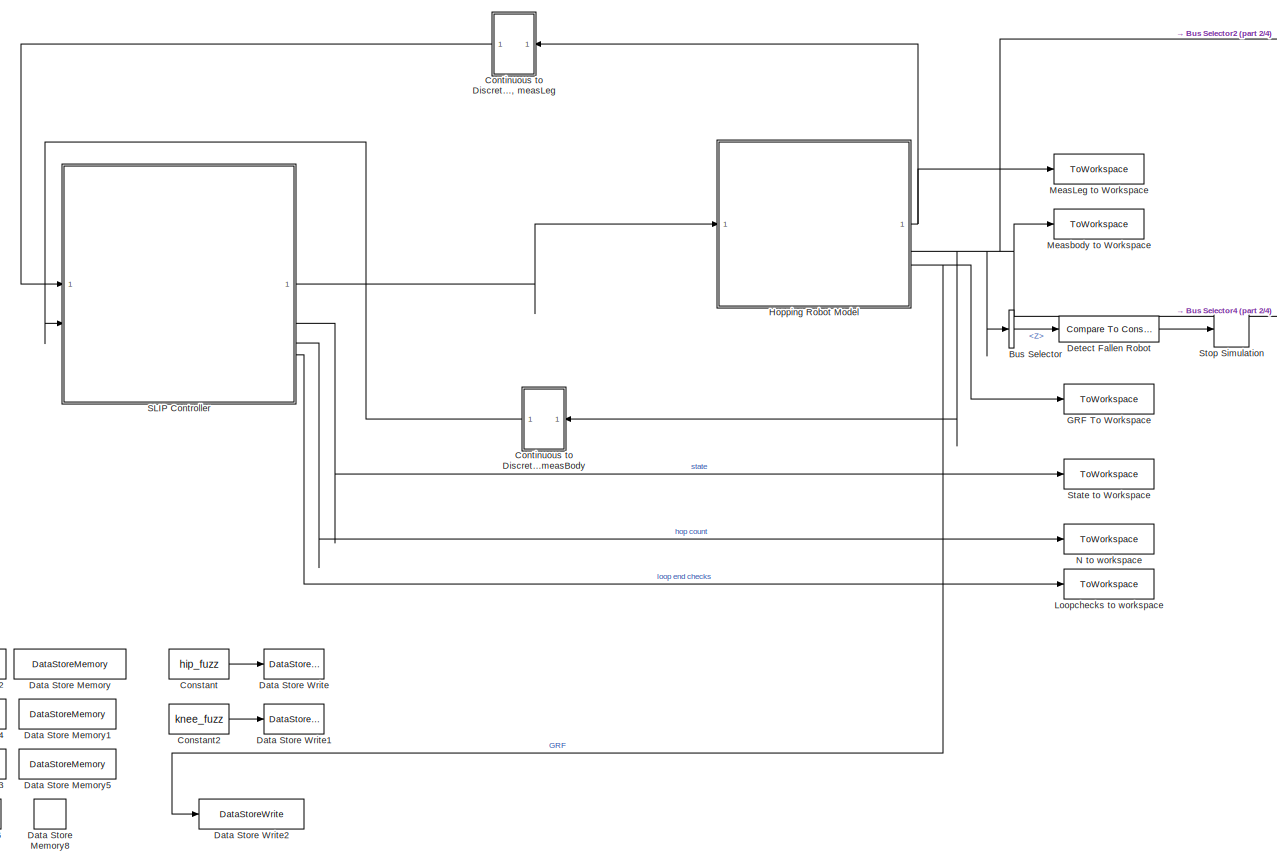
[diagram: root canvas - part 1/4, center side, full height]
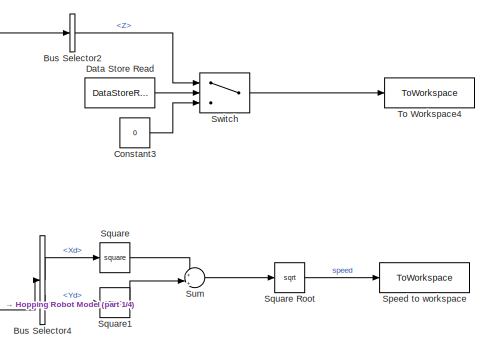
[diagram: root canvas - part 2/4, top right region]
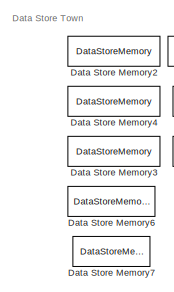
[diagram: root canvas - part 3/4, bottom left region]
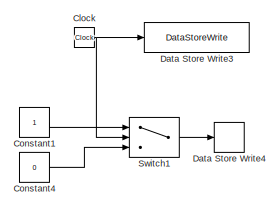
[diagram: root canvas - part 4/4, bottom left region]
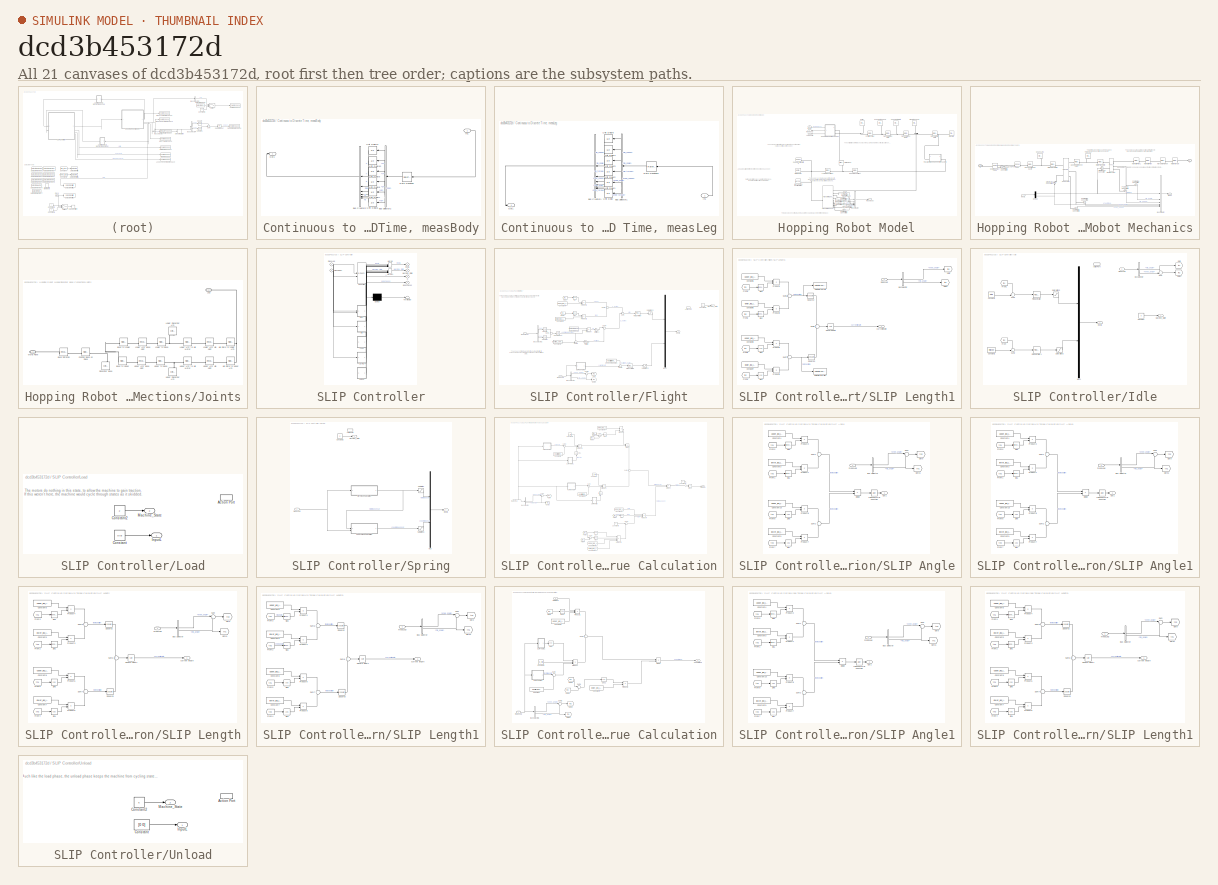
[diagram: thumbnail index - all 21 canvases of the model, root first then tree order]
MODEL slx_dcd3b453172d
KIND model
CONFIG AbsTol = auto
CONFIG EnableMultiTasking = off
CONFIG FixedStep = 1E-6
CONFIG MaxStep = 1E-5
CONFIG MinStep = auto
CONFIG RelTol = 1E-9
CONFIG SampleTimeConstraint = Unconstrained
CONFIG SolverName = VariableStepAuto
CONFIG StartTime = 0.0
CONFIG StopTime = 4
BLOCK [BusSelector] Bus Selector
  OutputSignals = Z
BLOCK [BusSelector] Bus Selector2
  OutputSignals = Z
BLOCK [BusSelector] Bus Selector4
  OutputSignals = Xd,Yd
BLOCK [Clock] Clock
BLOCK [Constant] Constant
  Commented = on
  Value = hip_fuzz
BLOCK [Constant] Constant1
BLOCK [Constant] Constant2
  Commented = on
  Value = knee_fuzz
BLOCK [Constant] Constant3
  Value = 0
BLOCK [Constant] Constant4
  Value = 0
BLOCK [SubSystem] Continuous to Discrete Time, measBody
BLOCK [BusCreator] Continuous to Discrete Time, measBody/Bus Creator2
  DisplayOption = bar
  InheritFromInputs = on
  Inputs = 6
BLOCK [BusSelector] Continuous to Discrete Time, measBody/Bus Selector2
  OutputSignals = X,Y,Z,Zdd,Xd,Yd
BLOCK [Inport] Continuous to Discrete Time, measBody/In1
BLOCK [Outport] Continuous to Discrete Time, measBody/Out1
BLOCK [RateTransition] Continuous to Discrete Time, measBody/Rate Transition
BLOCK [UnitDelay] Continuous to Discrete Time, measBody/Unit Delay10
  HasFrameUpgradeWarning = on
  SampleTime = -1
BLOCK [UnitDelay] Continuous to Discrete Time, measBody/Unit Delay11
  HasFrameUpgradeWarning = on
  SampleTime = -1
BLOCK [UnitDelay] Continuous to Discrete Time, measBody/Unit Delay6
  HasFrameUpgradeWarning = on
  SampleTime = -1
BLOCK [UnitDelay] Continuous to Discrete Time, measBody/Unit Delay7
  HasFrameUpgradeWarning = on
  SampleTime = -1
BLOCK [UnitDelay] Continuous to Discrete Time, measBody/Unit Delay8
  HasFrameUpgradeWarning = on
  SampleTime = -1
BLOCK [UnitDelay] Continuous to Discrete Time, measBody/Unit Delay9
  HasFrameUpgradeWarning = on
  SampleTime = -1
BLOCK [SubSystem] Continuous to Discrete Time, measLeg
BLOCK [BusCreator] Continuous to Discrete Time, measLeg/Bus Creator1
  DisplayOption = bar
  InheritFromInputs = on
  Inputs = 6
BLOCK [BusSelector] Continuous to Discrete Time, measLeg/Bus Selector1
  OutputSignals = hip_speed,hip_angle,hip torque,knee_speed,knee_angle,knee torque
BLOCK [Inport] Continuous to Discrete Time, measLeg/In1
BLOCK [Outport] Continuous to Discrete Time, measLeg/Out1
BLOCK [RateTransition] Continuous to Discrete Time, measLeg/Rate Transition1
BLOCK [UnitDelay] Continuous to Discrete Time, measLeg/Unit Delay
  HasFrameUpgradeWarning = on
  SampleTime = -1
BLOCK [UnitDelay] Continuous to Discrete Time, measLeg/Unit Delay1
  HasFrameUpgradeWarning = on
  SampleTime = -1
BLOCK [UnitDelay] Continuous to Discrete Time, measLeg/Unit Delay2
  HasFrameUpgradeWarning = on
  SampleTime = -1
BLOCK [UnitDelay] Continuous to Discrete Time, measLeg/Unit Delay3
  HasFrameUpgradeWarning = on
  SampleTime = -1
BLOCK [UnitDelay] Continuous to Discrete Time, measLeg/Unit Delay4
  HasFrameUpgradeWarning = on
  SampleTime = -1
BLOCK [UnitDelay] Continuous to Discrete Time, measLeg/Unit Delay5
  HasFrameUpgradeWarning = on
  SampleTime = -1
BLOCK [DataStoreMemory] Data Store Memory
  DataStoreName = Simscape_Transitions
  Dimensions = 1
  OutDataTypeStr = double
  ShowAdditionalParam = off
  SignalType = real
  WriteAfterWriteMsg = warning
BLOCK [DataStoreMemory] Data Store Memory1
  DataStoreName = Hip_Impact_Angle
  OutDataTypeStr = double
  ShowAdditionalParam = off
  SignalType = real
  WriteAfterWriteMsg = warning
BLOCK [DataStoreMemory] Data Store Memory2
  DataStoreName = foot_y_flight
  OutDataTypeStr = double
  ShowAdditionalParam = off
  SignalType = real
  WriteAfterWriteMsg = warning
BLOCK [DataStoreMemory] Data Store Memory3
  DataStoreName = SLIP_impact_angle
  OutDataTypeStr = double
  ShowAdditionalParam = off
  SignalType = real
  WriteAfterWriteMsg = warning
BLOCK [DataStoreMemory] Data Store Memory4
  DataStoreName = foot_x_flight
  OutDataTypeStr = double
  ShowAdditionalParam = off
  SignalType = real
  WriteAfterWriteMsg = warning
BLOCK [DataStoreMemory] Data Store Memory5
  DataStoreName = contactTime
  OutDataTypeStr = double
  ShowAdditionalParam = off
  SignalType = real
  WriteAfterWriteMsg = warning
BLOCK [DataStoreMemory] Data Store Memory6
  DataStoreName = simTime
  OutDataTypeStr = double
  ShowAdditionalParam = off
  SignalType = real
  WriteAfterWriteMsg = warning
BLOCK [DataStoreMemory] Data Store Memory7
  DataStoreName = hasHopped
  OutDataTypeStr = double
  ShowAdditionalParam = off
  SignalType = real
  WriteAfterWriteMsg = warning
BLOCK [DataStoreMemory] Data Store Memory8
  DataStoreName = run
  OutDataTypeStr = double
  ShowAdditionalParam = off
  SignalType = real
  WriteAfterWriteMsg = warning
BLOCK [DataStoreRead] Data Store Read
  DataStoreName = hasHopped
  IndexOptions = Index vector (dialog)
  Indices = 1
  OutputSizes = 1
BLOCK [DataStoreWrite] Data Store Write
  Commented = on
  DataStoreName = hip_range
  IndexOptions = Index vector (dialog)
  Indices = 1
  OutputSizes = 1
BLOCK [DataStoreWrite] Data Store Write1
  Commented = on
  DataStoreName = knee_range
  IndexOptions = Index vector (dialog)
  Indices = 1
  OutputSizes = 1
BLOCK [DataStoreWrite] Data Store Write2
  DataStoreName = Simscape_Transitions
  IndexOptions = Index vector (dialog)
  Indices = 1
  OutputSizes = 1
BLOCK [DataStoreWrite] Data Store Write3
  DataStoreName = simTime
  IndexOptions = Index vector (dialog)
  Indices = 1
  OutputSizes = 1
BLOCK [DataStoreWrite] Data Store Write4
  DataStoreName = run
  IndexOptions = Index vector (dialog)
  Indices = 1
  OutputSizes = 1
BLOCK [Reference] Detect Fallen Robot  REF=simulink/Logic and Bit
Operations/Compare
To Constant
  SourceBlock = simulink/Logic and Bit\nOperations/Compare\nTo Constant
  SourceType = Compare To Constant
BLOCK [ToWorkspace] GRF To Workspace
  Commented = on
  FixptAsFi = on
  MaxDataPoints = inf
  SampleTime = -1
  VariableName = GRF
BLOCK [SubSystem] Hopping Robot Model
BLOCK [Outport] Hopping Robot Model/AvgFootN
  Port = 3
BLOCK [BusCreator] Hopping Robot Model/Bus Creator
  DisplayOption = bar
  InheritFromInputs = on
  Inputs = 6
BLOCK [Reference] Hopping Robot Model/Hip Motor AK80-6  REF=sm_lib/Body Elements/File Solid
  NameLocation = top
  SourceBlock = sm_lib/Body Elements/File Solid
  SourceType = File Solid
BLOCK [Reference] Hopping Robot Model/Hip Plate  REF=sm_lib/Body Elements/File Solid
  NameLocation = top
  SourceBlock = sm_lib/Body Elements/File Solid
  SourceType = File Solid
BLOCK [SubSystem] Hopping Robot Model/Hopping Robot Mechanics
  PortSchema = {"entries":[{"content":{"sides":[{"content":{"connectorIds":["LConn1","LConn2"]},"type":"ConnectorPlacement.EquallySpacedRectSide","uuid":"2e35cc04-a060-4e4a-9dbe-9dc1ccd10687"},{"content":{"connectorIds":["In1","Out1","Out2"],"side":"RIGHT"},"type":"ConnectorPlacement.EquallySpacedRectSide","uuid":"c6bb660b-0b98-4ab9-9025-982c1a13b41d"},{"content":{"connectorIds":[],"side":"TOP"},"type":"Connecto...<+409ch>
BLOCK [Outport] Hopping Robot Model/Hopping Robot Mechanics/AvgFootN
  Port = 2
BLOCK [BusCreator] Hopping Robot Model/Hopping Robot Mechanics/Bus Creator
  DisplayOption = bar
  InheritFromInputs = on
  Inputs = 6
BLOCK [Demux] Hopping Robot Model/Hopping Robot Mechanics/Demux
  Outputs = 2
BLOCK [Reference] Hopping Robot Model/Hopping Robot Mechanics/Foot  REF=sm_lib/Body Elements/Spherical Solid
  NameLocation = top
  SourceBlock = sm_lib/Body Elements/Spherical Solid
  SourceType = Spherical Solid
BLOCK [PMIOPort] Hopping Robot Model/Hopping Robot Mechanics/G
  Side = Left
BLOCK [PMIOPort] Hopping Robot Model/Hopping Robot Mechanics/H
  Port = 2
  Side = Left
BLOCK [Reference] Hopping Robot Model/Hopping Robot Mechanics/Hip Pitch Joint  REF=sm_lib/Joints/Revolute Joint
  SourceBlock = sm_lib/Joints/Revolute Joint
  SourceType = Revolute Joint
BLOCK [Reference] Hopping Robot Model/Hopping Robot Mechanics/Hip Roll to Pitch  REF=sm_lib/Frames and
Transforms/Rigid
Transform
  SourceBlock = sm_lib/Frames and\nTransforms/Rigid\nTransform
  SourceType = Rigid\nTransform
BLOCK [Reference] Hopping Robot Model/Hopping Robot Mechanics/Hip Roll to Pitch1  REF=sm_lib/Frames and
Transforms/Rigid
Transform
  SourceBlock = sm_lib/Frames and\nTransforms/Rigid\nTransform
  SourceType = Rigid\nTransform
BLOCK [Reference] Hopping Robot Model/Hopping Robot Mechanics/Hip Yaw to Hip Roll  REF=sm_lib/Frames and
Transforms/Rigid
Transform
  SourceBlock = sm_lib/Frames and\nTransforms/Rigid\nTransform
  SourceType = Rigid\nTransform
BLOCK [Reference] Hopping Robot Model/Hopping Robot Mechanics/Hip to Hip Yaw  REF=sm_lib/Frames and
Transforms/Rigid
Transform
  SourceBlock = sm_lib/Frames and\nTransforms/Rigid\nTransform
  SourceType = Rigid\nTransform
BLOCK [Inport] Hopping Robot Model/Hopping Robot Mechanics/InputL
BLOCK [Reference] Hopping Robot Model/Hopping Robot Mechanics/Knee Joint  REF=sm_lib/Joints/Revolute Joint
  SourceBlock = sm_lib/Joints/Revolute Joint
  SourceType = Revolute Joint
BLOCK [Reference] Hopping Robot Model/Hopping Robot Mechanics/PS-Simulink Converter  REF=nesl_utility/PS-Simulink
Converter
  SourceBlock = nesl_utility/PS-Simulink\nConverter
  SourceType = PS-Simulink\nConverter
BLOCK [Reference] Hopping Robot Model/Hopping Robot Mechanics/PS-Simulink Converter1  REF=nesl_utility/PS-Simulink
Converter
  SourceBlock = nesl_utility/PS-Simulink\nConverter
  SourceType = PS-Simulink\nConverter
BLOCK [Reference] Hopping Robot Model/Hopping Robot Mechanics/PS-Simulink Converter2  REF=nesl_utility/PS-Simulink
Converter
  SourceBlock = nesl_utility/PS-Simulink\nConverter
  SourceType = PS-Simulink\nConverter
BLOCK [Reference] Hopping Robot Model/Hopping Robot Mechanics/PS-Simulink Converter3  REF=nesl_utility/PS-Simulink
Converter
  SourceBlock = nesl_utility/PS-Simulink\nConverter
  SourceType = PS-Simulink\nConverter
BLOCK [Reference] Hopping Robot Model/Hopping Robot Mechanics/PS-Simulink Converter4  REF=nesl_utility/PS-Simulink
Converter
  SourceBlock = nesl_utility/PS-Simulink\nConverter
  SourceType = PS-Simulink\nConverter
BLOCK [Reference] Hopping Robot Model/Hopping Robot Mechanics/Place Foot in Link Cavity  REF=sm_lib/Frames and
Transforms/Rigid
Transform
  SourceBlock = sm_lib/Frames and\nTransforms/Rigid\nTransform
  SourceType = Rigid\nTransform
BLOCK [Reference] Hopping Robot Model/Hopping Robot Mechanics/Rigid Transform  REF=sm_lib/Frames and
Transforms/Rigid
Transform
  SourceBlock = sm_lib/Frames and\nTransforms/Rigid\nTransform
  SourceType = Rigid\nTransform
BLOCK [Reference] Hopping Robot Model/Hopping Robot Mechanics/Rigid Transform3  REF=sm_lib/Frames and
Transforms/Rigid
Transform
  SourceBlock = sm_lib/Frames and\nTransforms/Rigid\nTransform
  SourceType = Rigid\nTransform
BLOCK [Reference] Hopping Robot Model/Hopping Robot Mechanics/Shank Link  REF=sm_lib/Body Elements/File Solid
  NameLocation = top
  SourceBlock = sm_lib/Body Elements/File Solid
  SourceType = File Solid
BLOCK [Reference] Hopping Robot Model/Hopping Robot Mechanics/Simulink-PS Converter  REF=nesl_utility/Simulink-PS
Converter
  SourceBlock = nesl_utility/Simulink-PS\nConverter
  SourceType = Simulink-PS\nConverter
BLOCK [Reference] Hopping Robot Model/Hopping Robot Mechanics/Simulink-PS Converter1  REF=nesl_utility/Simulink-PS
Converter
  NameLocation = right
  SourceBlock = nesl_utility/Simulink-PS\nConverter
  SourceType = Simulink-PS\nConverter
BLOCK [Reference] Hopping Robot Model/Hopping Robot Mechanics/Spatial Contact Force  REF=sm_lib/Forces and
Torques/Spatial
Contact Force
  SourceBlock = sm_lib/Forces and\nTorques/Spatial\nContact Force
  SourceType = Spatial\nContact Force
BLOCK [Reference] Hopping Robot Model/Hopping Robot Mechanics/Thigh Link  REF=sm_lib/Body Elements/File Solid
  NameLocation = top
  SourceBlock = sm_lib/Body Elements/File Solid
  SourceType = File Solid
BLOCK [Reference] Hopping Robot Model/Hopping Robot Mechanics/Upper Leg to Knee Joint  REF=sm_lib/Frames and
Transforms/Rigid
Transform
  NameLocation = top
  SourceBlock = sm_lib/Frames and\nTransforms/Rigid\nTransform
  SourceType = Rigid\nTransform
BLOCK [Outport] Hopping Robot Model/Hopping Robot Mechanics/meas
BLOCK [Inport] Hopping Robot Model/InputL
BLOCK [Reference] Hopping Robot Model/Knee Motor AK80-6  REF=sm_lib/Body Elements/File Solid
  NameLocation = top
  SourceBlock = sm_lib/Body Elements/File Solid
  SourceType = File Solid
BLOCK [Reference] Hopping Robot Model/Knee Motor Plate  REF=sm_lib/Body Elements/File Solid
  NameLocation = top
  SourceBlock = sm_lib/Body Elements/File Solid
  SourceType = File Solid
BLOCK [Reference] Hopping Robot Model/Lower Plane Offset  REF=sm_lib/Frames and
Transforms/Rigid
Transform
  SourceBlock = sm_lib/Frames and\nTransforms/Rigid\nTransform
  SourceType = Rigid\nTransform
BLOCK [Reference] Hopping Robot Model/Mechanism Configuration  REF=sm_lib/Utilities/Mechanism
Configuration
  SourceBlock = sm_lib/Utilities/Mechanism\nConfiguration
  SourceType = Mechanism\nConfiguration
BLOCK [Reference] Hopping Robot Model/PS-Simulink Converter  REF=nesl_utility/PS-Simulink
Converter
  SourceBlock = nesl_utility/PS-Simulink\nConverter
  SourceType = PS-Simulink\nConverter
BLOCK [Reference] Hopping Robot Model/PS-Simulink Converter1  REF=nesl_utility/PS-Simulink
Converter
  SourceBlock = nesl_utility/PS-Simulink\nConverter
  SourceType = PS-Simulink\nConverter
BLOCK [Reference] Hopping Robot Model/PS-Simulink Converter2  REF=nesl_utility/PS-Simulink
Converter
  SourceBlock = nesl_utility/PS-Simulink\nConverter
  SourceType = PS-Simulink\nConverter
BLOCK [Reference] Hopping Robot Model/PS-Simulink Converter3  REF=nesl_utility/PS-Simulink
Converter
  SourceBlock = nesl_utility/PS-Simulink\nConverter
  SourceType = PS-Simulink\nConverter
BLOCK [Reference] Hopping Robot Model/PS-Simulink Converter4  REF=nesl_utility/PS-Simulink
Converter
  SourceBlock = nesl_utility/PS-Simulink\nConverter
  SourceType = PS-Simulink\nConverter
BLOCK [Reference] Hopping Robot Model/PS-Simulink Converter5  REF=nesl_utility/PS-Simulink
Converter
  SourceBlock = nesl_utility/PS-Simulink\nConverter
  SourceType = PS-Simulink\nConverter
BLOCK [Reference] Hopping Robot Model/Place Motor in Plate  REF=sm_lib/Frames and
Transforms/Rigid
Transform
  NameLocation = top
  SourceBlock = sm_lib/Frames and\nTransforms/Rigid\nTransform
  SourceType = Rigid\nTransform
BLOCK [Reference] Hopping Robot Model/Place Motor on Plate  REF=sm_lib/Frames and
Transforms/Rigid
Transform
  NameLocation = top
  SourceBlock = sm_lib/Frames and\nTransforms/Rigid\nTransform
  SourceType = Rigid\nTransform
BLOCK [Reference] Hopping Robot Model/Place Plate on Motor  REF=sm_lib/Frames and
Transforms/Rigid
Transform
  NameLocation = top
  SourceBlock = sm_lib/Frames and\nTransforms/Rigid\nTransform
  SourceType = Rigid\nTransform
BLOCK [SubSystem] Hopping Robot Model/Planarizer Base Connections//Joints
BLOCK [Reference] Hopping Robot Model/Planarizer Base Connections//Joints/Base Rotation  REF=sm_lib/Joints/Revolute Joint
  NameLocation = top
  SourceBlock = sm_lib/Joints/Revolute Joint
  SourceType = Revolute Joint
BLOCK [Reference] Hopping Robot Model/Planarizer Base Connections//Joints/Base to Lower  REF=sm_lib/Frames and
Transforms/Rigid
Transform
  SourceBlock = sm_lib/Frames and\nTransforms/Rigid\nTransform
  SourceType = Rigid\nTransform
BLOCK [Reference] Hopping Robot Model/Planarizer Base Connections//Joints/Base to Upper  REF=sm_lib/Frames and
Transforms/Rigid
Transform
  SourceBlock = sm_lib/Frames and\nTransforms/Rigid\nTransform
  SourceType = Rigid\nTransform
BLOCK [Reference] Hopping Robot Model/Planarizer Base Connections//Joints/Hip Plate to Lower Arm  REF=sm_lib/Frames and
Transforms/Rigid
Transform
  SourceBlock = sm_lib/Frames and\nTransforms/Rigid\nTransform
  SourceType = Rigid\nTransform
BLOCK [Reference] Hopping Robot Model/Planarizer Base Connections//Joints/Hip Plate to Upper Arm  REF=sm_lib/Frames and
Transforms/Rigid
Transform
  SourceBlock = sm_lib/Frames and\nTransforms/Rigid\nTransform
  SourceType = Rigid\nTransform
BLOCK [PMIOPort] Hopping Robot Model/Planarizer Base Connections//Joints/Leg
  Side = Left
BLOCK [Reference] Hopping Robot Model/Planarizer Base Connections//Joints/Lower Arm Base Joint  REF=sm_lib/Joints/Revolute Joint
  SourceBlock = sm_lib/Joints/Revolute Joint
  SourceType = Revolute Joint
BLOCK [Reference] Hopping Robot Model/Planarizer Base Connections//Joints/Lower Arm Hip Joint  REF=sm_lib/Joints/Revolute Joint
  SourceBlock = sm_lib/Joints/Revolute Joint
  SourceType = Revolute Joint
BLOCK [Reference] Hopping Robot Model/Planarizer Base Connections//Joints/Lower Arm to Hip Motor  REF=sm_lib/Frames and
Transforms/Rigid
Transform
  SourceBlock = sm_lib/Frames and\nTransforms/Rigid\nTransform
  SourceType = Rigid\nTransform
BLOCK [Reference] Hopping Robot Model/Planarizer Base Connections//Joints/Lower Planarizer Arm  REF=sm_lib/Body Elements/Cylindrical Solid
  NameLocation = left
  SourceBlock = sm_lib/Body Elements/Cylindrical Solid
  SourceType = Cylindrical Solid
BLOCK [Reference] Hopping Robot Model/Planarizer Base Connections//Joints/Lower to Base  REF=sm_lib/Frames and
Transforms/Rigid
Transform
  SourceBlock = sm_lib/Frames and\nTransforms/Rigid\nTransform
  SourceType = Rigid\nTransform
BLOCK [Reference] Hopping Robot Model/Planarizer Base Connections//Joints/Planarizer Base  REF=sm_lib/Body Elements/Cylindrical Solid
  NameLocation = left
  SourceBlock = sm_lib/Body Elements/Cylindrical Solid
  SourceType = Cylindrical Solid
BLOCK [Reference] Hopping Robot Model/Planarizer Base Connections//Joints/Position Base on Plane  REF=sm_lib/Frames and
Transforms/Rigid
Transform
  SourceBlock = sm_lib/Frames and\nTransforms/Rigid\nTransform
  SourceType = Rigid\nTransform
BLOCK [Reference] Hopping Robot Model/Planarizer Base Connections//Joints/Upper Arm Base Joint  REF=sm_lib/Joints/Revolute Joint
  SourceBlock = sm_lib/Joints/Revolute Joint
  SourceType = Revolute Joint
BLOCK [Reference] Hopping Robot Model/Planarizer Base Connections//Joints/Upper Arm Hip Joint  REF=sm_lib/Joints/Revolute Joint
  SourceBlock = sm_lib/Joints/Revolute Joint
  SourceType = Revolute Joint
BLOCK [Reference] Hopping Robot Model/Planarizer Base Connections//Joints/Upper Arm to Hip Motor  REF=sm_lib/Frames and
Transforms/Rigid
Transform
  SourceBlock = sm_lib/Frames and\nTransforms/Rigid\nTransform
  SourceType = Rigid\nTransform
BLOCK [Reference] Hopping Robot Model/Planarizer Base Connections//Joints/Upper Planarizer Arm  REF=sm_lib/Body Elements/Cylindrical Solid
  NameLocation = left
  SourceBlock = sm_lib/Body Elements/Cylindrical Solid
  SourceType = Cylindrical Solid
BLOCK [Reference] Hopping Robot Model/Planarizer Base Connections//Joints/Upper to Base  REF=sm_lib/Frames and
Transforms/Rigid
Transform
  SourceBlock = sm_lib/Frames and\nTransforms/Rigid\nTransform
  SourceType = Rigid\nTransform
BLOCK [PMIOPort] Hopping Robot Model/Planarizer Base Connections//Joints/World Plane
  Port = 2
  Side = Right
BLOCK [Reference] Hopping Robot Model/Position Pulley  REF=sm_lib/Frames and
Transforms/Rigid
Transform
  NameLocation = top
  SourceBlock = sm_lib/Frames and\nTransforms/Rigid\nTransform
  SourceType = Rigid\nTransform
BLOCK [Reference] Hopping Robot Model/Pulley  REF=sm_lib/Body Elements/File Solid
  NameLocation = top
  SourceBlock = sm_lib/Body Elements/File Solid
  SourceType = File Solid
BLOCK [Reference] Hopping Robot Model/Solver Configuration  REF=nesl_utility/Solver
Configuration
  SourceBlock = nesl_utility/Solver\nConfiguration
  SourceType = Solver\nConfiguration
BLOCK [Reference] Hopping Robot Model/Transform Sensor  REF=sm_lib/Frames and
Transforms/Transform
Sensor
  SourceBlock = sm_lib/Frames and\nTransforms/Transform\nSensor
  SourceType = Transform\nSensor
BLOCK [Reference] Hopping Robot Model/Upper Plane Offset  REF=sm_lib/Frames and
Transforms/Rigid
Transform
  SourceBlock = sm_lib/Frames and\nTransforms/Rigid\nTransform
  SourceType = Rigid\nTransform
BLOCK [Reference] Hopping Robot Model/World Frame  REF=sm_lib/Frames and
Transforms/World Frame
  SourceBlock = sm_lib/Frames and\nTransforms/World Frame
  SourceType = World Frame
BLOCK [Reference] Hopping Robot Model/World Plane  REF=sm_lib/Body Elements/Brick Solid
  NameLocation = right
  SourceBlock = sm_lib/Body Elements/Brick Solid
  SourceType = Brick Solid
BLOCK [Outport] Hopping Robot Model/measBody
  Port = 2
BLOCK [Outport] Hopping Robot Model/measLeg
BLOCK [ToWorkspace] Loopchecks to workspace
  FixptAsFi = on
  MaxDataPoints = inf
  SampleTime = -1
  VariableName = loopchecks
BLOCK [ToWorkspace] MeasLeg to Workspace
  Commented = on
  FixptAsFi = on
  MaxDataPoints = inf
  SampleTime = -1
  VariableName = measLeg
BLOCK [ToWorkspace] Measbody to Workspace
  Commented = on
  FixptAsFi = on
  MaxDataPoints = inf
  SampleTime = -1
  VariableName = measBody
BLOCK [ToWorkspace] N to workspace
  Commented = on
  FixptAsFi = on
  MaxDataPoints = inf
  SampleTime = -1
  SaveFormat = Timeseries
  VariableName = n
BLOCK [SubSystem] SLIP Controller
  ErrorFcn = Stateflow.Translate.translate
  PermitHierarchicalResolution = ExplicitOnly
  SFBlockType = Chart
  TreatAsAtomicUnit = on
BLOCK [Demux] SLIP Controller/ Demux 
  Outputs = 1
BLOCK [Merge] SLIP Controller/ Merge 
  Inputs = 6
BLOCK [Merge] SLIP Controller/ Merge 1
  Inputs = 6
BLOCK [S-Function] SLIP Controller/ SFunction 
  EnableBusSupport = on
  FunctionName = sf_sfun
  PortCounts = [2 5]
  SFcnIsStateOwnerBlock = off
  SFunctionDeploymentMode = off
  Tag = Stateflow S-Function 3
BLOCK [Terminator] SLIP Controller/ Terminator 
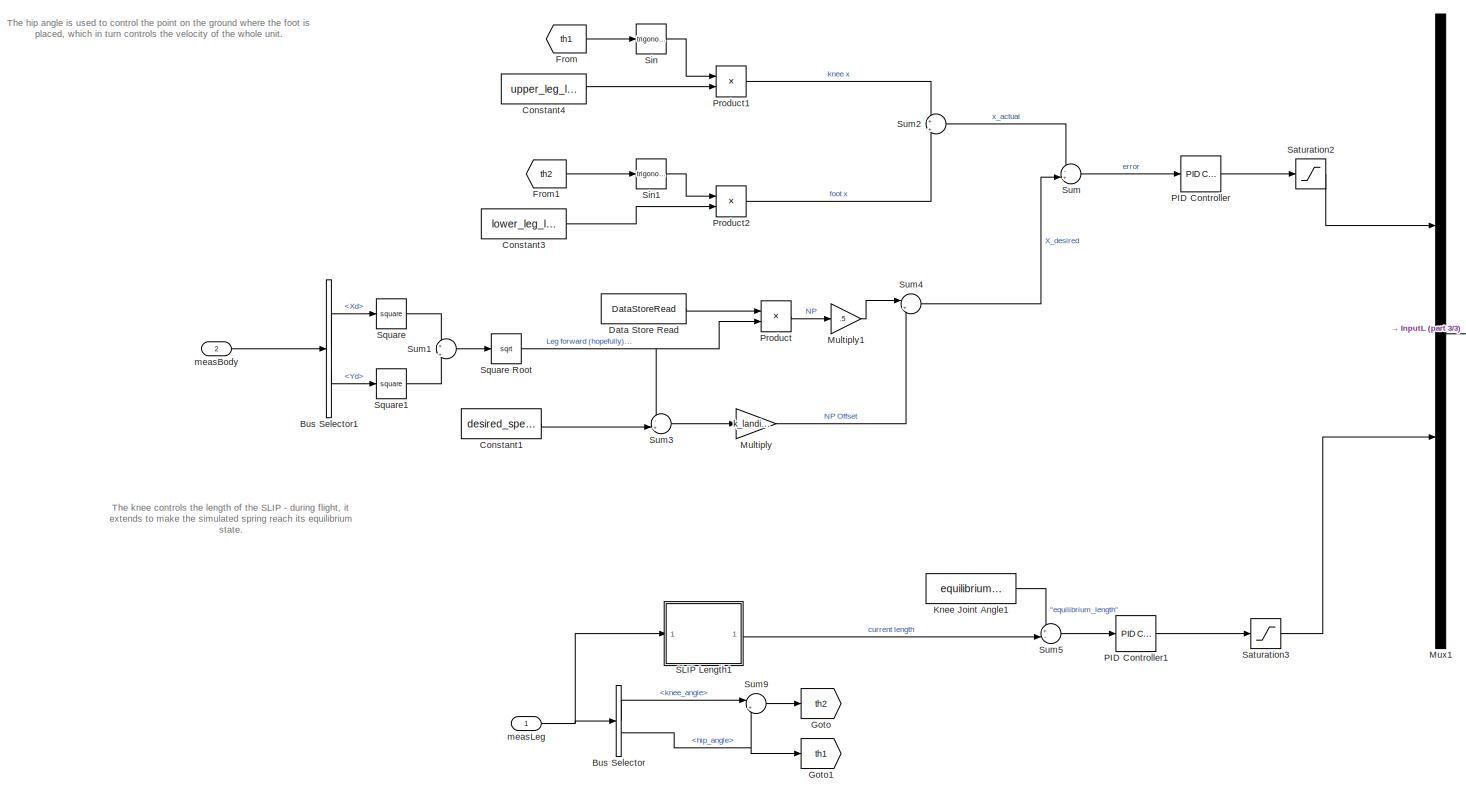
[diagram: SLIP Controller/Flight - part 1/3, most of the canvas]
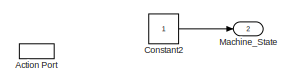
[diagram: SLIP Controller/Flight - part 2/3, top right region]
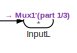
[diagram: SLIP Controller/Flight - part 3/3, middle right region]
BLOCK [SubSystem] SLIP Controller/Flight
  PreDeleteFcn = Stateflow.SLINSF.SimulinkMan.removePreDeleteFcn
  UndoDeleteFcn = Stateflow.SLINSF.SimulinkMan.restorePreDeleteFcn
BLOCK [ActionPort] SLIP Controller/Flight/Action Port
  CopyFcn = Stateflow.SLINSF.SimulinkMan.removeBlockPreDeleteFcn
  PreDeleteFcn = Stateflow.SLINSF.SimulinkMan.unsafePredeleteFcn
BLOCK [BusSelector] SLIP Controller/Flight/Bus Selector
  OutputSignals = knee_angle,hip_angle
BLOCK [BusSelector] SLIP Controller/Flight/Bus Selector1
  OutputSignals = Xd,Yd
BLOCK [Constant] SLIP Controller/Flight/Constant1
  Value = desired_speed
BLOCK [Constant] SLIP Controller/Flight/Constant2
BLOCK [Constant] SLIP Controller/Flight/Constant3
  Value = lower_leg_length
BLOCK [Constant] SLIP Controller/Flight/Constant4
  Value = upper_leg_length
BLOCK [DataStoreRead] SLIP Controller/Flight/Data Store Read
  DataStoreName = contactTime
  IndexOptions = Index vector (dialog)
  Indices = 1
  OutputSizes = 1
BLOCK [From] SLIP Controller/Flight/From
  GotoTag = th1
BLOCK [From] SLIP Controller/Flight/From1
  GotoTag = th2
BLOCK [Goto] SLIP Controller/Flight/Goto
  GotoTag = th2
BLOCK [Goto] SLIP Controller/Flight/Goto1
  GotoTag = th1
BLOCK [Outport] SLIP Controller/Flight/InputL
BLOCK [Constant] SLIP Controller/Flight/Knee Joint Angle1
  Value = equilibrium_length
BLOCK [Outport] SLIP Controller/Flight/Machine_State
  Port = 2
BLOCK [Gain] SLIP Controller/Flight/Multiply
  Gain = k_landing_angle
BLOCK [Gain] SLIP Controller/Flight/Multiply1
  Gain = .5
BLOCK [Mux] SLIP Controller/Flight/Mux1
  DisplayOption = bar
  Inputs = 2
BLOCK [Reference] SLIP Controller/Flight/PID Controller  REF=slpidlib/PID Controller
  SourceBlock = slpidlib/PID Controller
  SourceType = PID 1dof
BLOCK [Reference] SLIP Controller/Flight/PID Controller1  REF=slpidlib/PID Controller
  SourceBlock = slpidlib/PID Controller
  SourceType = PID 1dof
BLOCK [Product] SLIP Controller/Flight/Product
BLOCK [Product] SLIP Controller/Flight/Product1
BLOCK [Product] SLIP Controller/Flight/Product2
BLOCK [SubSystem] SLIP Controller/Flight/SLIP Length1
BLOCK [BusSelector] SLIP Controller/Flight/SLIP Length1/Bus Selector
  OutputSignals = knee_angle,hip_angle
BLOCK [Constant] SLIP Controller/Flight/SLIP Length1/Constant5
  Value = lower_leg_length
BLOCK [Constant] SLIP Controller/Flight/SLIP Length1/Constant6
  Value = upper_leg_length
BLOCK [Constant] SLIP Controller/Flight/SLIP Length1/Constant7
  Value = lower_leg_length
BLOCK [Constant] SLIP Controller/Flight/SLIP Length1/Constant8
  Value = upper_leg_length
BLOCK [DataStoreWrite] SLIP Controller/Flight/SLIP Length1/Data Store Write
  DataStoreName = foot_x_flight
  IndexOptions = Index vector (dialog)
  Indices = 1
  OutputSizes = 1
BLOCK [DataStoreWrite] SLIP Controller/Flight/SLIP Length1/Data Store Write1
  DataStoreName = foot_y_flight
  IndexOptions = Index vector (dialog)
  Indices = 1
  OutputSizes = 1
BLOCK [From] SLIP Controller/Flight/SLIP Length1/From2
  GotoTag = th2
BLOCK [From] SLIP Controller/Flight/SLIP Length1/From3
  GotoTag = th1
BLOCK [From] SLIP Controller/Flight/SLIP Length1/From4
  GotoTag = th2
BLOCK [From] SLIP Controller/Flight/SLIP Length1/From5
  GotoTag = th1
BLOCK [Goto] SLIP Controller/Flight/SLIP Length1/Goto
  GotoTag = th2
BLOCK [Goto] SLIP Controller/Flight/SLIP Length1/Goto1
  GotoTag = th1
BLOCK [Product] SLIP Controller/Flight/SLIP Length1/Product3
BLOCK [Product] SLIP Controller/Flight/SLIP Length1/Product4
BLOCK [Product] SLIP Controller/Flight/SLIP Length1/Product5
BLOCK [Product] SLIP Controller/Flight/SLIP Length1/Product6
BLOCK [Trigonometry] SLIP Controller/Flight/SLIP Length1/Sin2
BLOCK [Trigonometry] SLIP Controller/Flight/SLIP Length1/Sin3
BLOCK [Trigonometry] SLIP Controller/Flight/SLIP Length1/Sin4
  Operator = cos
BLOCK [Trigonometry] SLIP Controller/Flight/SLIP Length1/Sin5
  Operator = cos
BLOCK [Sqrt] SLIP Controller/Flight/SLIP Length1/Square Root1
BLOCK [Math] SLIP Controller/Flight/SLIP Length1/Square2
  Operator = square
BLOCK [Math] SLIP Controller/Flight/SLIP Length1/Square3
  Operator = square
BLOCK [Sum] SLIP Controller/Flight/SLIP Length1/Sum6
  Inputs = +|+
BLOCK [Sum] SLIP Controller/Flight/SLIP Length1/Sum7
  Inputs = +|+
BLOCK [Sum] SLIP Controller/Flight/SLIP Length1/Sum8
  Inputs = +|+
BLOCK [Outport] SLIP Controller/Flight/SLIP Length1/current length
BLOCK [Inport] SLIP Controller/Flight/SLIP Length1/measLeg
BLOCK [Saturate] SLIP Controller/Flight/Saturation2
  LowerLimit = -max_torque
  UpperLimit = max_torque
BLOCK [Saturate] SLIP Controller/Flight/Saturation3
  LowerLimit = -max_torque
  UpperLimit = max_torque
BLOCK [Trigonometry] SLIP Controller/Flight/Sin
BLOCK [Trigonometry] SLIP Controller/Flight/Sin1
BLOCK [Math] SLIP Controller/Flight/Square
  Operator = square
BLOCK [Sqrt] SLIP Controller/Flight/Square Root
BLOCK [Math] SLIP Controller/Flight/Square1
  Operator = square
BLOCK [Sum] SLIP Controller/Flight/Sum
  Inputs = -+|
BLOCK [Sum] SLIP Controller/Flight/Sum1
  Inputs = +|+
BLOCK [Sum] SLIP Controller/Flight/Sum2
  Inputs = +|+
BLOCK [Sum] SLIP Controller/Flight/Sum3
  Inputs = -+|
BLOCK [Sum] SLIP Controller/Flight/Sum4
  Inputs = |++
BLOCK [Sum] SLIP Controller/Flight/Sum5
  Inputs = +-|
BLOCK [Sum] SLIP Controller/Flight/Sum9
  Inputs = |++
BLOCK [Inport] SLIP Controller/Flight/measBody
  Port = 2
BLOCK [Inport] SLIP Controller/Flight/measLeg
BLOCK [SubSystem] SLIP Controller/Idle
  PreDeleteFcn = Stateflow.SLINSF.SimulinkMan.removePreDeleteFcn
  UndoDeleteFcn = Stateflow.SLINSF.SimulinkMan.restorePreDeleteFcn
BLOCK [ActionPort] SLIP Controller/Idle/Action Port
  CopyFcn = Stateflow.SLINSF.SimulinkMan.removeBlockPreDeleteFcn
  PreDeleteFcn = Stateflow.SLINSF.SimulinkMan.unsafePredeleteFcn
BLOCK [BusSelector] SLIP Controller/Idle/Bus Selector
  OutputSignals = hip_angle,knee_angle
BLOCK [Constant] SLIP Controller/Idle/Constant
  Value = 0
BLOCK [Constant] SLIP Controller/Idle/Constant1
  Value = initKnee
BLOCK [Constant] SLIP Controller/Idle/Constant2
  Value = initHip
BLOCK [From] SLIP Controller/Idle/From
  GotoTag = th2
BLOCK [From] SLIP Controller/Idle/From1
  GotoTag = th1
BLOCK [Goto] SLIP Controller/Idle/Goto
  GotoTag = th1
BLOCK [Goto] SLIP Controller/Idle/Goto1
  GotoTag = th2
BLOCK [Outport] SLIP Controller/Idle/InputL
BLOCK [Outport] SLIP Controller/Idle/Machine_State
  Port = 2
BLOCK [Mux] SLIP Controller/Idle/Mux1
  DisplayOption = bar
  Inputs = 2
BLOCK [Reference] SLIP Controller/Idle/PID Controller  REF=slpidlib/PID Controller
  SourceBlock = slpidlib/PID Controller
  SourceType = PID 1dof
BLOCK [Reference] SLIP Controller/Idle/PID Controller1  REF=slpidlib/PID Controller
  SourceBlock = slpidlib/PID Controller
  SourceType = PID 1dof
BLOCK [Saturate] SLIP Controller/Idle/Saturation2
  LowerLimit = -max_torque
  UpperLimit = max_torque
BLOCK [Saturate] SLIP Controller/Idle/Saturation3
  LowerLimit = -max_torque
  UpperLimit = max_torque
BLOCK [Sum] SLIP Controller/Idle/Sum
  Inputs = ++|
BLOCK [Sum] SLIP Controller/Idle/Sum1
  Inputs = -+|
BLOCK [Sum] SLIP Controller/Idle/Sum2
  Inputs = -+|
BLOCK [Inport] SLIP Controller/Idle/measLeg
BLOCK [Outport] SLIP Controller/InputL
BLOCK [SubSystem] SLIP Controller/Load
  PreDeleteFcn = Stateflow.SLINSF.SimulinkMan.removePreDeleteFcn
  UndoDeleteFcn = Stateflow.SLINSF.SimulinkMan.restorePreDeleteFcn
BLOCK [ActionPort] SLIP Controller/Load/Action Port
  CopyFcn = Stateflow.SLINSF.SimulinkMan.removeBlockPreDeleteFcn
  PreDeleteFcn = Stateflow.SLINSF.SimulinkMan.unsafePredeleteFcn
BLOCK [Constant] SLIP Controller/Load/Constant
  Value = [0 0]
  VectorParams1D = off
BLOCK [Constant] SLIP Controller/Load/Constant2
  Value = 2
BLOCK [Outport] SLIP Controller/Load/InputL
BLOCK [Outport] SLIP Controller/Load/Machine_State
  Port = 2
BLOCK [Outport] SLIP Controller/Machine_State
  Port = 2
BLOCK [SubSystem] SLIP Controller/Spring
  PreDeleteFcn = Stateflow.SLINSF.SimulinkMan.removePreDeleteFcn
  UndoDeleteFcn = Stateflow.SLINSF.SimulinkMan.restorePreDeleteFcn
BLOCK [ActionPort] SLIP Controller/Spring/Action Port
  CopyFcn = Stateflow.SLINSF.SimulinkMan.removeBlockPreDeleteFcn
  PreDeleteFcn = Stateflow.SLINSF.SimulinkMan.unsafePredeleteFcn
BLOCK [Constant] SLIP Controller/Spring/Constant2
  Value = 3
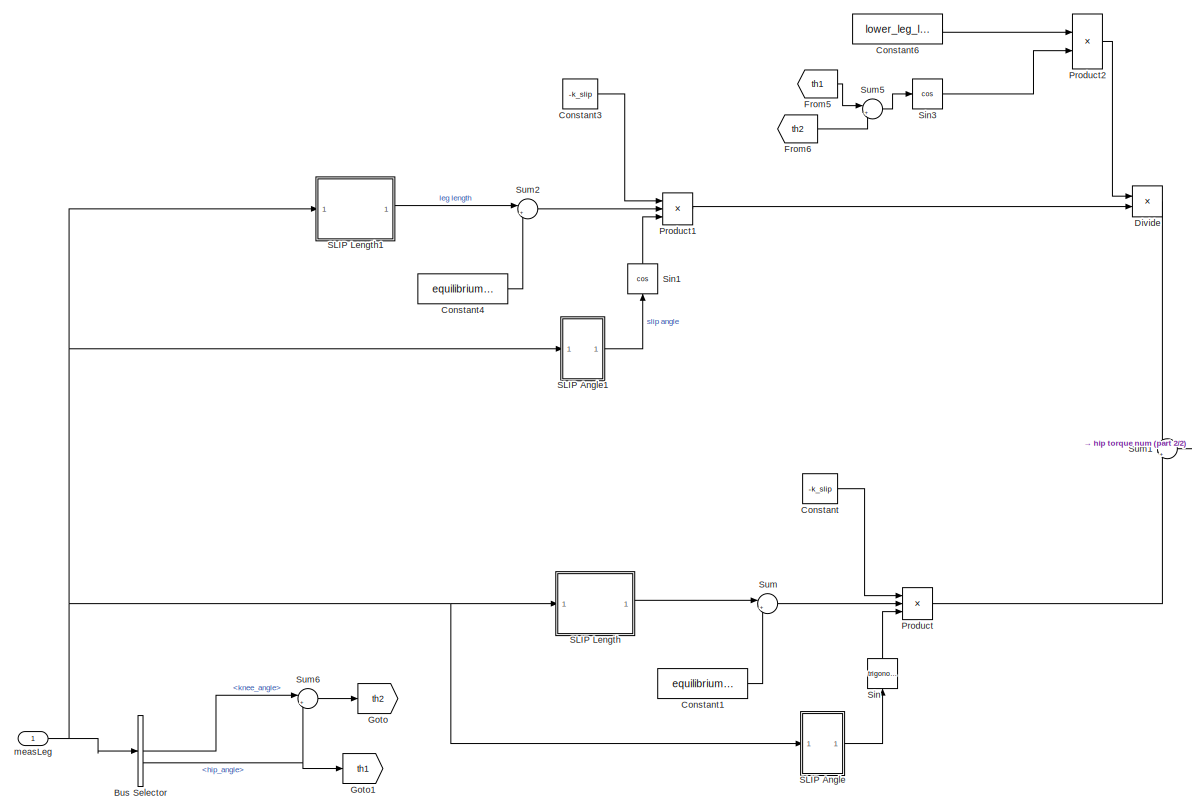
[diagram: SLIP Controller/Spring/Hip Torque Calculation - part 1/2, middle left region]
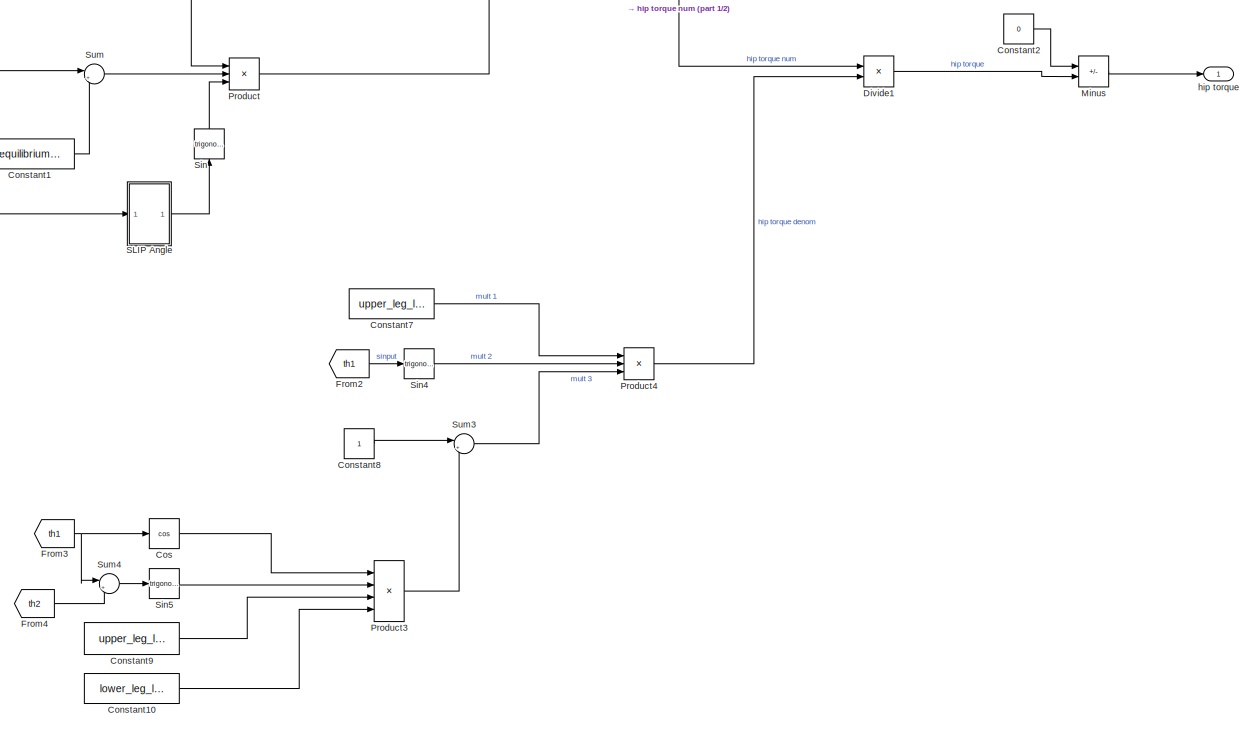
[diagram: SLIP Controller/Spring/Hip Torque Calculation - part 2/2, bottom right region]
BLOCK [SubSystem] SLIP Controller/Spring/Hip Torque Calculation
BLOCK [BusSelector] SLIP Controller/Spring/Hip Torque Calculation/Bus Selector
  OutputSignals = knee_angle,hip_angle
BLOCK [Constant] SLIP Controller/Spring/Hip Torque Calculation/Constant
  Value = -k_slip
BLOCK [Constant] SLIP Controller/Spring/Hip Torque Calculation/Constant1
  Value = equilibrium_length
BLOCK [Constant] SLIP Controller/Spring/Hip Torque Calculation/Constant10
  Value = lower_leg_length
BLOCK [Constant] SLIP Controller/Spring/Hip Torque Calculation/Constant2
  Value = 0
BLOCK [Constant] SLIP Controller/Spring/Hip Torque Calculation/Constant3
  Value = -k_slip
BLOCK [Constant] SLIP Controller/Spring/Hip Torque Calculation/Constant4
  Value = equilibrium_length
BLOCK [Constant] SLIP Controller/Spring/Hip Torque Calculation/Constant6
  Value = lower_leg_length
BLOCK [Constant] SLIP Controller/Spring/Hip Torque Calculation/Constant7
  Value = upper_leg_length
BLOCK [Constant] SLIP Controller/Spring/Hip Torque Calculation/Constant8
BLOCK [Constant] SLIP Controller/Spring/Hip Torque Calculation/Constant9
  Value = upper_leg_length
BLOCK [Trigonometry] SLIP Controller/Spring/Hip Torque Calculation/Cos
  Operator = cos
BLOCK [Product] SLIP Controller/Spring/Hip Torque Calculation/Divide
  Inputs = /*
BLOCK [Product] SLIP Controller/Spring/Hip Torque Calculation/Divide1
  Inputs = */
BLOCK [From] SLIP Controller/Spring/Hip Torque Calculation/From2
  GotoTag = th1
BLOCK [From] SLIP Controller/Spring/Hip Torque Calculation/From3
  GotoTag = th1
BLOCK [From] SLIP Controller/Spring/Hip Torque Calculation/From4
  GotoTag = th2
BLOCK [From] SLIP Controller/Spring/Hip Torque Calculation/From5
  GotoTag = th1
BLOCK [From] SLIP Controller/Spring/Hip Torque Calculation/From6
  GotoTag = th2
BLOCK [Goto] SLIP Controller/Spring/Hip Torque Calculation/Goto
  GotoTag = th2
BLOCK [Goto] SLIP Controller/Spring/Hip Torque Calculation/Goto1
  GotoTag = th1
BLOCK [Sum] SLIP Controller/Spring/Hip Torque Calculation/Minus
  IconShape = rectangular
  Inputs = +-
BLOCK [Product] SLIP Controller/Spring/Hip Torque Calculation/Product
  Inputs = 3
BLOCK [Product] SLIP Controller/Spring/Hip Torque Calculation/Product1
  Inputs = 3
BLOCK [Product] SLIP Controller/Spring/Hip Torque Calculation/Product2
BLOCK [Product] SLIP Controller/Spring/Hip Torque Calculation/Product3
  Inputs = 4
BLOCK [Product] SLIP Controller/Spring/Hip Torque Calculation/Product4
  Inputs = 3
BLOCK [SubSystem] SLIP Controller/Spring/Hip Torque Calculation/SLIP Angle
BLOCK [BusSelector] SLIP Controller/Spring/Hip Torque Calculation/SLIP Angle/Bus Selector
  OutputSignals = knee_angle,hip_angle
BLOCK [Constant] SLIP Controller/Spring/Hip Torque Calculation/SLIP Angle/Constant10
  Value = upper_leg_length
BLOCK [Constant] SLIP Controller/Spring/Hip Torque Calculation/SLIP Angle/Constant3
  Value = lower_leg_length
BLOCK [Constant] SLIP Controller/Spring/Hip Torque Calculation/SLIP Angle/Constant4
  Value = upper_leg_length
BLOCK [Constant] SLIP Controller/Spring/Hip Torque Calculation/SLIP Angle/Constant9
  Value = lower_leg_length
BLOCK [Product] SLIP Controller/Spring/Hip Torque Calculation/SLIP Angle/Divide
  Inputs = */
BLOCK [From] SLIP Controller/Spring/Hip Torque Calculation/SLIP Angle/From1
  GotoTag = th2
BLOCK [From] SLIP Controller/Spring/Hip Torque Calculation/SLIP Angle/From6
  GotoTag = th1
BLOCK [From] SLIP Controller/Spring/Hip Torque Calculation/SLIP Angle/From7
  GotoTag = th2
BLOCK [From] SLIP Controller/Spring/Hip Torque Calculation/SLIP Angle/From8
  GotoTag = th1
BLOCK [Goto] SLIP Controller/Spring/Hip Torque Calculation/SLIP Angle/Goto
  GotoTag = th2
BLOCK [Goto] SLIP Controller/Spring/Hip Torque Calculation/SLIP Angle/Goto1
  GotoTag = th1
BLOCK [Outport] SLIP Controller/Spring/Hip Torque Calculation/SLIP Angle/Out1
BLOCK [Product] SLIP Controller/Spring/Hip Torque Calculation/SLIP Angle/Product1
BLOCK [Product] SLIP Controller/Spring/Hip Torque Calculation/SLIP Angle/Product2
BLOCK [Product] SLIP Controller/Spring/Hip Torque Calculation/SLIP Angle/Product7
BLOCK [Product] SLIP Controller/Spring/Hip Torque Calculation/SLIP Angle/Product8
BLOCK [Trigonometry] SLIP Controller/Spring/Hip Torque Calculation/SLIP Angle/Sin1
BLOCK [Trigonometry] SLIP Controller/Spring/Hip Torque Calculation/SLIP Angle/Sin6
BLOCK [Trigonometry] SLIP Controller/Spring/Hip Torque Calculation/SLIP Angle/Sin7
  Operator = cos
BLOCK [Trigonometry] SLIP Controller/Spring/Hip Torque Calculation/SLIP Angle/Sin8
  Operator = cos
BLOCK [Sum] SLIP Controller/Spring/Hip Torque Calculation/SLIP Angle/Sum
  Inputs = |++
BLOCK [Sum] SLIP Controller/Spring/Hip Torque Calculation/SLIP Angle/Sum1
  Inputs = +|+
BLOCK [Sum] SLIP Controller/Spring/Hip Torque Calculation/SLIP Angle/Sum2
  Inputs = +|+
BLOCK [Trigonometry] SLIP Controller/Spring/Hip Torque Calculation/SLIP Angle/Trigonometric Function
  Operator = atan
BLOCK [Inport] SLIP Controller/Spring/Hip Torque Calculation/SLIP Angle/measLeg
BLOCK [SubSystem] SLIP Controller/Spring/Hip Torque Calculation/SLIP Angle1
BLOCK [BusSelector] SLIP Controller/Spring/Hip Torque Calculation/SLIP Angle1/Bus Selector
  OutputSignals = knee_angle,hip_angle
BLOCK [Constant] SLIP Controller/Spring/Hip Torque Calculation/SLIP Angle1/Constant10
  Value = upper_leg_length
BLOCK [Constant] SLIP Controller/Spring/Hip Torque Calculation/SLIP Angle1/Constant3
  Value = lower_leg_length
BLOCK [Constant] SLIP Controller/Spring/Hip Torque Calculation/SLIP Angle1/Constant4
  Value = upper_leg_length
BLOCK [Constant] SLIP Controller/Spring/Hip Torque Calculation/SLIP Angle1/Constant9
  Value = lower_leg_length
BLOCK [Product] SLIP Controller/Spring/Hip Torque Calculation/SLIP Angle1/Divide
  Inputs = */
BLOCK [From] SLIP Controller/Spring/Hip Torque Calculation/SLIP Angle1/From1
  GotoTag = th2
BLOCK [From] SLIP Controller/Spring/Hip Torque Calculation/SLIP Angle1/From6
  GotoTag = th1
BLOCK [From] SLIP Controller/Spring/Hip Torque Calculation/SLIP Angle1/From7
  GotoTag = th2
BLOCK [From] SLIP Controller/Spring/Hip Torque Calculation/SLIP Angle1/From8
  GotoTag = th1
BLOCK [Goto] SLIP Controller/Spring/Hip Torque Calculation/SLIP Angle1/Goto
  GotoTag = th2
BLOCK [Goto] SLIP Controller/Spring/Hip Torque Calculation/SLIP Angle1/Goto1
  GotoTag = th1
BLOCK [Outport] SLIP Controller/Spring/Hip Torque Calculation/SLIP Angle1/Out1
BLOCK [Product] SLIP Controller/Spring/Hip Torque Calculation/SLIP Angle1/Product1
BLOCK [Product] SLIP Controller/Spring/Hip Torque Calculation/SLIP Angle1/Product2
BLOCK [Product] SLIP Controller/Spring/Hip Torque Calculation/SLIP Angle1/Product7
BLOCK [Product] SLIP Controller/Spring/Hip Torque Calculation/SLIP Angle1/Product8
BLOCK [Trigonometry] SLIP Controller/Spring/Hip Torque Calculation/SLIP Angle1/Sin1
BLOCK [Trigonometry] SLIP Controller/Spring/Hip Torque Calculation/SLIP Angle1/Sin6
BLOCK [Trigonometry] SLIP Controller/Spring/Hip Torque Calculation/SLIP Angle1/Sin7
  Operator = cos
BLOCK [Trigonometry] SLIP Controller/Spring/Hip Torque Calculation/SLIP Angle1/Sin8
  Operator = cos
BLOCK [Sum] SLIP Controller/Spring/Hip Torque Calculation/SLIP Angle1/Sum
  Inputs = |++
BLOCK [Sum] SLIP Controller/Spring/Hip Torque Calculation/SLIP Angle1/Sum1
  Inputs = +|+
BLOCK [Sum] SLIP Controller/Spring/Hip Torque Calculation/SLIP Angle1/Sum2
  Inputs = +|+
BLOCK [Trigonometry] SLIP Controller/Spring/Hip Torque Calculation/SLIP Angle1/Trigonometric Function
  Operator = atan
BLOCK [Inport] SLIP Controller/Spring/Hip Torque Calculation/SLIP Angle1/measLeg
BLOCK [SubSystem] SLIP Controller/Spring/Hip Torque Calculation/SLIP Length
BLOCK [BusSelector] SLIP Controller/Spring/Hip Torque Calculation/SLIP Length/Bus Selector
  OutputSignals = knee_angle,hip_angle
BLOCK [Constant] SLIP Controller/Spring/Hip Torque Calculation/SLIP Length/Constant5
  Value = lower_leg_length
BLOCK [Constant] SLIP Controller/Spring/Hip Torque Calculation/SLIP Length/Constant6
  Value = upper_leg_length
BLOCK [Constant] SLIP Controller/Spring/Hip Torque Calculation/SLIP Length/Constant7
  Value = lower_leg_length
BLOCK [Constant] SLIP Controller/Spring/Hip Torque Calculation/SLIP Length/Constant8
  Value = upper_leg_length
BLOCK [From] SLIP Controller/Spring/Hip Torque Calculation/SLIP Length/From2
  GotoTag = th2
BLOCK [From] SLIP Controller/Spring/Hip Torque Calculation/SLIP Length/From3
  GotoTag = th1
BLOCK [From] SLIP Controller/Spring/Hip Torque Calculation/SLIP Length/From4
  GotoTag = th2
BLOCK [From] SLIP Controller/Spring/Hip Torque Calculation/SLIP Length/From5
  GotoTag = th1
BLOCK [Goto] SLIP Controller/Spring/Hip Torque Calculation/SLIP Length/Goto
  GotoTag = th2
BLOCK [Goto] SLIP Controller/Spring/Hip Torque Calculation/SLIP Length/Goto1
  GotoTag = th1
BLOCK [Product] SLIP Controller/Spring/Hip Torque Calculation/SLIP Length/Product3
BLOCK [Product] SLIP Controller/Spring/Hip Torque Calculation/SLIP Length/Product4
BLOCK [Product] SLIP Controller/Spring/Hip Torque Calculation/SLIP Length/Product5
BLOCK [Product] SLIP Controller/Spring/Hip Torque Calculation/SLIP Length/Product6
BLOCK [Trigonometry] SLIP Controller/Spring/Hip Torque Calculation/SLIP Length/Sin2
BLOCK [Trigonometry] SLIP Controller/Spring/Hip Torque Calculation/SLIP Length/Sin3
BLOCK [Trigonometry] SLIP Controller/Spring/Hip Torque Calculation/SLIP Length/Sin4
  Operator = cos
BLOCK [Trigonometry] SLIP Controller/Spring/Hip Torque Calculation/SLIP Length/Sin5
  Operator = cos
BLOCK [Sqrt] SLIP Controller/Spring/Hip Torque Calculation/SLIP Length/Square Root1
BLOCK [Math] SLIP Controller/Spring/Hip Torque Calculation/SLIP Length/Square2
  Operator = square
BLOCK [Math] SLIP Controller/Spring/Hip Torque Calculation/SLIP Length/Square3
  Operator = square
BLOCK [Sum] SLIP Controller/Spring/Hip Torque Calculation/SLIP Length/Sum
  Inputs = |++
BLOCK [Sum] SLIP Controller/Spring/Hip Torque Calculation/SLIP Length/Sum6
  Inputs = +|+
BLOCK [Sum] SLIP Controller/Spring/Hip Torque Calculation/SLIP Length/Sum7
  Inputs = +|+
BLOCK [Sum] SLIP Controller/Spring/Hip Torque Calculation/SLIP Length/Sum8
  Inputs = +|+
BLOCK [Outport] SLIP Controller/Spring/Hip Torque Calculation/SLIP Length/current length
BLOCK [Inport] SLIP Controller/Spring/Hip Torque Calculation/SLIP Length/measLeg
BLOCK [SubSystem] SLIP Controller/Spring/Hip Torque Calculation/SLIP Length1
BLOCK [BusSelector] SLIP Controller/Spring/Hip Torque Calculation/SLIP Length1/Bus Selector
  OutputSignals = knee_angle,hip_angle
BLOCK [Constant] SLIP Controller/Spring/Hip Torque Calculation/SLIP Length1/Constant5
  Value = lower_leg_length
BLOCK [Constant] SLIP Controller/Spring/Hip Torque Calculation/SLIP Length1/Constant6
  Value = upper_leg_length
BLOCK [Constant] SLIP Controller/Spring/Hip Torque Calculation/SLIP Length1/Constant7
  Value = lower_leg_length
BLOCK [Constant] SLIP Controller/Spring/Hip Torque Calculation/SLIP Length1/Constant8
  Value = upper_leg_length
BLOCK [From] SLIP Controller/Spring/Hip Torque Calculation/SLIP Length1/From2
  GotoTag = th2
BLOCK [From] SLIP Controller/Spring/Hip Torque Calculation/SLIP Length1/From3
  GotoTag = th1
BLOCK [From] SLIP Controller/Spring/Hip Torque Calculation/SLIP Length1/From4
  GotoTag = th2
BLOCK [From] SLIP Controller/Spring/Hip Torque Calculation/SLIP Length1/From5
  GotoTag = th1
BLOCK [Goto] SLIP Controller/Spring/Hip Torque Calculation/SLIP Length1/Goto
  GotoTag = th2
BLOCK [Goto] SLIP Controller/Spring/Hip Torque Calculation/SLIP Length1/Goto1
  GotoTag = th1
BLOCK [Product] SLIP Controller/Spring/Hip Torque Calculation/SLIP Length1/Product3
BLOCK [Product] SLIP Controller/Spring/Hip Torque Calculation/SLIP Length1/Product4
BLOCK [Product] SLIP Controller/Spring/Hip Torque Calculation/SLIP Length1/Product5
BLOCK [Product] SLIP Controller/Spring/Hip Torque Calculation/SLIP Length1/Product6
BLOCK [Trigonometry] SLIP Controller/Spring/Hip Torque Calculation/SLIP Length1/Sin2
BLOCK [Trigonometry] SLIP Controller/Spring/Hip Torque Calculation/SLIP Length1/Sin3
BLOCK [Trigonometry] SLIP Controller/Spring/Hip Torque Calculation/SLIP Length1/Sin4
  Operator = cos
BLOCK [Trigonometry] SLIP Controller/Spring/Hip Torque Calculation/SLIP Length1/Sin5
  Operator = cos
BLOCK [Sqrt] SLIP Controller/Spring/Hip Torque Calculation/SLIP Length1/Square Root1
BLOCK [Math] SLIP Controller/Spring/Hip Torque Calculation/SLIP Length1/Square2
  Operator = square
BLOCK [Math] SLIP Controller/Spring/Hip Torque Calculation/SLIP Length1/Square3
  Operator = square
BLOCK [Sum] SLIP Controller/Spring/Hip Torque Calculation/SLIP Length1/Sum
  Inputs = |++
BLOCK [Sum] SLIP Controller/Spring/Hip Torque Calculation/SLIP Length1/Sum6
  Inputs = +|+
BLOCK [Sum] SLIP Controller/Spring/Hip Torque Calculation/SLIP Length1/Sum7
  Inputs = +|+
BLOCK [Sum] SLIP Controller/Spring/Hip Torque Calculation/SLIP Length1/Sum8
  Inputs = +|+
BLOCK [Outport] SLIP Controller/Spring/Hip Torque Calculation/SLIP Length1/current length
BLOCK [Inport] SLIP Controller/Spring/Hip Torque Calculation/SLIP Length1/measLeg
BLOCK [Trigonometry] SLIP Controller/Spring/Hip Torque Calculation/Sin
  NameLocation = right
BLOCK [Trigonometry] SLIP Controller/Spring/Hip Torque Calculation/Sin1
  NameLocation = right
  Operator = cos
BLOCK [Trigonometry] SLIP Controller/Spring/Hip Torque Calculation/Sin3
  Operator = cos
BLOCK [Trigonometry] SLIP Controller/Spring/Hip Torque Calculation/Sin4
BLOCK [Trigonometry] SLIP Controller/Spring/Hip Torque Calculation/Sin5
BLOCK [Sum] SLIP Controller/Spring/Hip Torque Calculation/Sum
  Inputs = |+-
BLOCK [Sum] SLIP Controller/Spring/Hip Torque Calculation/Sum1
  Inputs = -|+
BLOCK [Sum] SLIP Controller/Spring/Hip Torque Calculation/Sum2
  Inputs = |+-
BLOCK [Sum] SLIP Controller/Spring/Hip Torque Calculation/Sum3
  Inputs = |++
BLOCK [Sum] SLIP Controller/Spring/Hip Torque Calculation/Sum4
  Inputs = |++
BLOCK [Sum] SLIP Controller/Spring/Hip Torque Calculation/Sum5
  Inputs = |++
BLOCK [Sum] SLIP Controller/Spring/Hip Torque Calculation/Sum6
  Inputs = |++
BLOCK [Outport] SLIP Controller/Spring/Hip Torque Calculation/hip torque
BLOCK [Inport] SLIP Controller/Spring/Hip Torque Calculation/measLeg
BLOCK [Outport] SLIP Controller/Spring/InputL
BLOCK [SubSystem] SLIP Controller/Spring/Knee Torque Calculation
BLOCK [BusSelector] SLIP Controller/Spring/Knee Torque Calculation/Bus Selector1
  OutputSignals = knee_angle,hip_angle
BLOCK [Constant] SLIP Controller/Spring/Knee Torque Calculation/Constant
  Value = equilibrium_length
BLOCK [Constant] SLIP Controller/Spring/Knee Torque Calculation/Constant1
  Value = -k_slip
BLOCK [Constant] SLIP Controller/Spring/Knee Torque Calculation/Constant3
  Value = upper_leg_length
BLOCK [Constant] SLIP Controller/Spring/Knee Torque Calculation/Constant4
  Value = lower_leg_length
BLOCK [Trigonometry] SLIP Controller/Spring/Knee Torque Calculation/Cos
  Operator = cos
BLOCK [Trigonometry] SLIP Controller/Spring/Knee Torque Calculation/Cos1
  Operator = cos
BLOCK [Trigonometry] SLIP Controller/Spring/Knee Torque Calculation/Cos2
  Operator = cos
BLOCK [Product] SLIP Controller/Spring/Knee Torque Calculation/Divide
  Inputs = */
BLOCK [From] SLIP Controller/Spring/Knee Torque Calculation/From
  GotoTag = th1
BLOCK [From] SLIP Controller/Spring/Knee Torque Calculation/From3
  GotoTag = th1
BLOCK [From] SLIP Controller/Spring/Knee Torque Calculation/From4
  GotoTag = th2
BLOCK [Goto] SLIP Controller/Spring/Knee Torque Calculation/Goto2
  GotoTag = th2
BLOCK [Goto] SLIP Controller/Spring/Knee Torque Calculation/Goto3
  GotoTag = th1
BLOCK [Product] SLIP Controller/Spring/Knee Torque Calculation/Product
  Inputs = 3
BLOCK [Product] SLIP Controller/Spring/Knee Torque Calculation/Product1
  Inputs = 3
BLOCK [Product] SLIP Controller/Spring/Knee Torque Calculation/Product2
BLOCK [SubSystem] SLIP Controller/Spring/Knee Torque Calculation/SLIP Angle1
BLOCK [BusSelector] SLIP Controller/Spring/Knee Torque Calculation/SLIP Angle1/Bus Selector
  OutputSignals = knee_angle,hip_angle
BLOCK [Constant] SLIP Controller/Spring/Knee Torque Calculation/SLIP Angle1/Constant10
  Value = upper_leg_length
BLOCK [Constant] SLIP Controller/Spring/Knee Torque Calculation/SLIP Angle1/Constant3
  Value = lower_leg_length
BLOCK [Constant] SLIP Controller/Spring/Knee Torque Calculation/SLIP Angle1/Constant4
  Value = upper_leg_length
BLOCK [Constant] SLIP Controller/Spring/Knee Torque Calculation/SLIP Angle1/Constant9
  Value = lower_leg_length
BLOCK [Product] SLIP Controller/Spring/Knee Torque Calculation/SLIP Angle1/Divide
  Inputs = */
BLOCK [From] SLIP Controller/Spring/Knee Torque Calculation/SLIP Angle1/From1
  GotoTag = th2
BLOCK [From] SLIP Controller/Spring/Knee Torque Calculation/SLIP Angle1/From6
  GotoTag = th1
BLOCK [From] SLIP Controller/Spring/Knee Torque Calculation/SLIP Angle1/From7
  GotoTag = th2
BLOCK [From] SLIP Controller/Spring/Knee Torque Calculation/SLIP Angle1/From8
  GotoTag = th1
BLOCK [Goto] SLIP Controller/Spring/Knee Torque Calculation/SLIP Angle1/Goto
  GotoTag = th2
BLOCK [Goto] SLIP Controller/Spring/Knee Torque Calculation/SLIP Angle1/Goto1
  GotoTag = th1
BLOCK [Outport] SLIP Controller/Spring/Knee Torque Calculation/SLIP Angle1/Out1
BLOCK [Product] SLIP Controller/Spring/Knee Torque Calculation/SLIP Angle1/Product1
BLOCK [Product] SLIP Controller/Spring/Knee Torque Calculation/SLIP Angle1/Product2
BLOCK [Product] SLIP Controller/Spring/Knee Torque Calculation/SLIP Angle1/Product7
BLOCK [Product] SLIP Controller/Spring/Knee Torque Calculation/SLIP Angle1/Product8
BLOCK [Trigonometry] SLIP Controller/Spring/Knee Torque Calculation/SLIP Angle1/Sin1
BLOCK [Trigonometry] SLIP Controller/Spring/Knee Torque Calculation/SLIP Angle1/Sin6
BLOCK [Trigonometry] SLIP Controller/Spring/Knee Torque Calculation/SLIP Angle1/Sin7
  Operator = cos
BLOCK [Trigonometry] SLIP Controller/Spring/Knee Torque Calculation/SLIP Angle1/Sin8
  Operator = cos
BLOCK [Sum] SLIP Controller/Spring/Knee Torque Calculation/SLIP Angle1/Sum
  Inputs = |++
BLOCK [Sum] SLIP Controller/Spring/Knee Torque Calculation/SLIP Angle1/Sum1
  Inputs = +|+
BLOCK [Sum] SLIP Controller/Spring/Knee Torque Calculation/SLIP Angle1/Sum2
  Inputs = +|+
BLOCK [Trigonometry] SLIP Controller/Spring/Knee Torque Calculation/SLIP Angle1/Trigonometric Function
  Operator = atan
BLOCK [Inport] SLIP Controller/Spring/Knee Torque Calculation/SLIP Angle1/measLeg
BLOCK [SubSystem] SLIP Controller/Spring/Knee Torque Calculation/SLIP Length1
BLOCK [BusSelector] SLIP Controller/Spring/Knee Torque Calculation/SLIP Length1/Bus Selector
  OutputSignals = knee_angle,hip_angle
BLOCK [Constant] SLIP Controller/Spring/Knee Torque Calculation/SLIP Length1/Constant5
  Value = lower_leg_length
BLOCK [Constant] SLIP Controller/Spring/Knee Torque Calculation/SLIP Length1/Constant6
  Value = upper_leg_length
BLOCK [Constant] SLIP Controller/Spring/Knee Torque Calculation/SLIP Length1/Constant7
  Value = lower_leg_length
BLOCK [Constant] SLIP Controller/Spring/Knee Torque Calculation/SLIP Length1/Constant8
  Value = upper_leg_length
BLOCK [From] SLIP Controller/Spring/Knee Torque Calculation/SLIP Length1/From2
  GotoTag = th2
BLOCK [From] SLIP Controller/Spring/Knee Torque Calculation/SLIP Length1/From3
  GotoTag = th1
BLOCK [From] SLIP Controller/Spring/Knee Torque Calculation/SLIP Length1/From4
  GotoTag = th2
BLOCK [From] SLIP Controller/Spring/Knee Torque Calculation/SLIP Length1/From5
  GotoTag = th1
BLOCK [Goto] SLIP Controller/Spring/Knee Torque Calculation/SLIP Length1/Goto
  GotoTag = th2
BLOCK [Goto] SLIP Controller/Spring/Knee Torque Calculation/SLIP Length1/Goto1
  GotoTag = th1
BLOCK [Product] SLIP Controller/Spring/Knee Torque Calculation/SLIP Length1/Product3
BLOCK [Product] SLIP Controller/Spring/Knee Torque Calculation/SLIP Length1/Product4
BLOCK [Product] SLIP Controller/Spring/Knee Torque Calculation/SLIP Length1/Product5
BLOCK [Product] SLIP Controller/Spring/Knee Torque Calculation/SLIP Length1/Product6
BLOCK [Trigonometry] SLIP Controller/Spring/Knee Torque Calculation/SLIP Length1/Sin2
BLOCK [Trigonometry] SLIP Controller/Spring/Knee Torque Calculation/SLIP Length1/Sin3
BLOCK [Trigonometry] SLIP Controller/Spring/Knee Torque Calculation/SLIP Length1/Sin4
  Operator = cos
BLOCK [Trigonometry] SLIP Controller/Spring/Knee Torque Calculation/SLIP Length1/Sin5
  Operator = cos
BLOCK [Sqrt] SLIP Controller/Spring/Knee Torque Calculation/SLIP Length1/Square Root1
BLOCK [Math] SLIP Controller/Spring/Knee Torque Calculation/SLIP Length1/Square2
  Operator = square
BLOCK [Math] SLIP Controller/Spring/Knee Torque Calculation/SLIP Length1/Square3
  Operator = square
BLOCK [Sum] SLIP Controller/Spring/Knee Torque Calculation/SLIP Length1/Sum
  Inputs = |++
BLOCK [Sum] SLIP Controller/Spring/Knee Torque Calculation/SLIP Length1/Sum6
  Inputs = +|+
BLOCK [Sum] SLIP Controller/Spring/Knee Torque Calculation/SLIP Length1/Sum7
  Inputs = +|+
BLOCK [Sum] SLIP Controller/Spring/Knee Torque Calculation/SLIP Length1/Sum8
  Inputs = +|+
BLOCK [Outport] SLIP Controller/Spring/Knee Torque Calculation/SLIP Length1/current length
BLOCK [Inport] SLIP Controller/Spring/Knee Torque Calculation/SLIP Length1/measLeg
BLOCK [Sum] SLIP Controller/Spring/Knee Torque Calculation/Sum
  Inputs = |+-
BLOCK [Sum] SLIP Controller/Spring/Knee Torque Calculation/Sum1
  Inputs = -|+
BLOCK [Sum] SLIP Controller/Spring/Knee Torque Calculation/Sum2
  Inputs = |++
BLOCK [Sum] SLIP Controller/Spring/Knee Torque Calculation/Sum4
  Inputs = |++
BLOCK [Inport] SLIP Controller/Spring/Knee Torque Calculation/hip torque
BLOCK [Outport] SLIP Controller/Spring/Knee Torque Calculation/knee torque
BLOCK [Inport] SLIP Controller/Spring/Knee Torque Calculation/measLeg
  Port = 2
BLOCK [Outport] SLIP Controller/Spring/Machine_State
  Port = 2
BLOCK [Mux] SLIP Controller/Spring/Mux
  DisplayOption = bar
  Inputs = 2
BLOCK [Saturate] SLIP Controller/Spring/Saturation
  LowerLimit = -max_torque
  UpperLimit = max_torque
BLOCK [Saturate] SLIP Controller/Spring/Saturation1
  LowerLimit = -max_torque
  UpperLimit = max_torque
BLOCK [Inport] SLIP Controller/Spring/measLeg
BLOCK [SubSystem] SLIP Controller/Unload
  PreDeleteFcn = Stateflow.SLINSF.SimulinkMan.removePreDeleteFcn
  UndoDeleteFcn = Stateflow.SLINSF.SimulinkMan.restorePreDeleteFcn
BLOCK [ActionPort] SLIP Controller/Unload/Action Port
  CopyFcn = Stateflow.SLINSF.SimulinkMan.removeBlockPreDeleteFcn
  PreDeleteFcn = Stateflow.SLINSF.SimulinkMan.unsafePredeleteFcn
BLOCK [Constant] SLIP Controller/Unload/Constant
  Value = [0 0]
  VectorParams1D = off
BLOCK [Constant] SLIP Controller/Unload/Constant2
  Value = 5
BLOCK [Outport] SLIP Controller/Unload/InputL
BLOCK [Outport] SLIP Controller/Unload/Machine_State
  Port = 2
BLOCK [Outport] SLIP Controller/loopchecks
  Port = 4
BLOCK [Inport] SLIP Controller/measBody
  Port = 2
BLOCK [Inport] SLIP Controller/measLeg
BLOCK [Outport] SLIP Controller/n
  Port = 3
BLOCK [ToWorkspace] Speed to workspace
  FixptAsFi = on
  MaxDataPoints = inf
  SampleTime = -1
  SaveFormat = Timeseries
  VariableName = speed
BLOCK [Math] Square
  Operator = square
BLOCK [Sqrt] Square Root
BLOCK [Math] Square1
  Operator = square
BLOCK [ToWorkspace] State to Workspace
  Commented = on
  FixptAsFi = on
  MaxDataPoints = inf
  SampleTime = -1
  VariableName = state
BLOCK [Stop] Stop Simulation
BLOCK [Sum] Sum
  Inputs = +|+
BLOCK [Switch] Switch
  InputSameDT = off
  SaturateOnIntegerOverflow = off
  Threshold = 1
BLOCK [Switch] Switch1
  Criteria = u2 > Threshold
  InputSameDT = off
  SaturateOnIntegerOverflow = off
  Threshold = .5
BLOCK [ToWorkspace] To Workspace4
  FixptAsFi = on
  MaxDataPoints = inf
  SampleTime = -1
  SaveFormat = Timeseries
  VariableName = hop_height
ANNOTATION (root): Data Store Town
ANNOTATION Hopping Robot Model: These blocks create a plane for the robot to move on. Additionally, the plane allows the foot model to detect contact with the ground.
ANNOTATION Hopping Robot Model: Add a global frame for the rest of the model to be based on
ANNOTATION Hopping Robot Model: Define gravitational acceleration in this block. (as well as joint transition parameters)
ANNOTATION Hopping Robot Model: The solver configuration block allows the user to define various settings of the solver.
ANNOTATION Hopping Robot Model: These 'rigid transform' blocks place the CAD models in the correct locations. There are only Cartesian transformations, and do not change the orientation of the axes in anyway.
ANNOTATION Hopping Robot Model: This block is sensor that can measure the X,Y,Z displacement of the hip mass
ANNOTATION Hopping Robot Model/Hopping Robot Mechanics: In the future, revolute joints can be placed between the transformations to provide more degrees of freedom.
ANNOTATION Hopping Robot Model/Hopping Robot Mechanics: These blocks are a set of axes transformations to place the hip pitch joint in the correct orientation.
ANNOTATION Hopping Robot Model/Hopping Robot Mechanics: This joint receives torque as the input and records the position and velocity.
ANNOTATION SLIP Controller/Flight: The hip angle is used to control the point on the ground where the foot is placed, which in turn controls the velocity of the whole unit.
ANNOTATION SLIP Controller/Flight: The knee controls the length of the SLIP - during flight, it extends to make the simulated spring reach its equilibrium state.
ANNOTATION SLIP Controller/Load: The motors do nothing in this state, to allow the machine to gain traction. If this weren't here, the machine would cycle through states as it skidded.
ANNOTATION SLIP Controller/Unload: Much like the load phase, the unload phase keeps the machine from cycling states as the foot skids on the ground a bit. The motors are doing nothing here.
LINE Bus Selector2:1 -> Switch:1
LINE Bus Selector4:1 -> Square:1
LINE Bus Selector4:2 -> Square1:1
LINE Bus Selector:1 -> Detect Fallen Robot:1
NET Clock:1 -> Data Store Write3:1, Switch1:2
LINE Constant1:1 -> Switch1:1
LINE Constant2:1 -> Data Store Write1:1
LINE Constant3:1 -> Switch:3
LINE Constant4:1 -> Switch1:3
LINE Constant:1 -> Data Store Write:1
LINE Continuous to Discrete Time, measBody/Bus Creator2:1 -> Continuous to Discrete Time, measBody/Out1:1
LINE Continuous to Discrete Time, measBody/Bus Selector2:1 -> Continuous to Discrete Time, measBody/Unit Delay11:1
LINE Continuous to Discrete Time, measBody/Bus Selector2:2 -> Continuous to Discrete Time, measBody/Unit Delay10:1
LINE Continuous to Discrete Time, measBody/Bus Selector2:3 -> Continuous to Discrete Time, measBody/Unit Delay9:1
LINE Continuous to Discrete Time, measBody/Bus Selector2:4 -> Continuous to Discrete Time, measBody/Unit Delay8:1
LINE Continuous to Discrete Time, measBody/Bus Selector2:5 -> Continuous to Discrete Time, measBody/Unit Delay7:1
LINE Continuous to Discrete Time, measBody/Bus Selector2:6 -> Continuous to Discrete Time, measBody/Unit Delay6:1
LINE Continuous to Discrete Time, measBody/In1:1 -> Continuous to Discrete Time, measBody/Rate Transition:1
LINE Continuous to Discrete Time, measBody/Rate Transition:1 -> Continuous to Discrete Time, measBody/Bus Selector2:1
LINE Continuous to Discrete Time, measBody/Unit Delay10:1 -> Continuous to Discrete Time, measBody/Bus Creator2:2
LINE Continuous to Discrete Time, measBody/Unit Delay11:1 -> Continuous to Discrete Time, measBody/Bus Creator2:1
LINE Continuous to Discrete Time, measBody/Unit Delay6:1 -> Continuous to Discrete Time, measBody/Bus Creator2:6
LINE Continuous to Discrete Time, measBody/Unit Delay7:1 -> Continuous to Discrete Time, measBody/Bus Creator2:5
LINE Continuous to Discrete Time, measBody/Unit Delay8:1 -> Continuous to Discrete Time, measBody/Bus Creator2:4
LINE Continuous to Discrete Time, measBody/Unit Delay9:1 -> Continuous to Discrete Time, measBody/Bus Creator2:3
LINE Continuous to Discrete Time, measBody:1 -> SLIP Controller:2
LINE Continuous to Discrete Time, measLeg/Bus Creator1:1 -> Continuous to Discrete Time, measLeg/Out1:1
LINE Continuous to Discrete Time, measLeg/Bus Selector1:1 -> Continuous to Discrete Time, measLeg/Unit Delay5:1
LINE Continuous to Discrete Time, measLeg/Bus Selector1:2 -> Continuous to Discrete Time, measLeg/Unit Delay4:1
LINE Continuous to Discrete Time, measLeg/Bus Selector1:3 -> Continuous to Discrete Time, measLeg/Unit Delay3:1
LINE Continuous to Discrete Time, measLeg/Bus Selector1:4 -> Continuous to Discrete Time, measLeg/Unit Delay2:1
LINE Continuous to Discrete Time, measLeg/Bus Selector1:5 -> Continuous to Discrete Time, measLeg/Unit Delay1:1
LINE Continuous to Discrete Time, measLeg/Bus Selector1:6 -> Continuous to Discrete Time, measLeg/Unit Delay:1
LINE Continuous to Discrete Time, measLeg/In1:1 -> Continuous to Discrete Time, measLeg/Rate Transition1:1
LINE Continuous to Discrete Time, measLeg/Rate Transition1:1 -> Continuous to Discrete Time, measLeg/Bus Selector1:1
LINE Continuous to Discrete Time, measLeg/Unit Delay1:1 -> Continuous to Discrete Time, measLeg/Bus Creator1:5
LINE Continuous to Discrete Time, measLeg/Unit Delay2:1 -> Continuous to Discrete Time, measLeg/Bus Creator1:4
LINE Continuous to Discrete Time, measLeg/Unit Delay3:1 -> Continuous to Discrete Time, measLeg/Bus Creator1:3
LINE Continuous to Discrete Time, measLeg/Unit Delay4:1 -> Continuous to Discrete Time, measLeg/Bus Creator1:2
LINE Continuous to Discrete Time, measLeg/Unit Delay5:1 -> Continuous to Discrete Time, measLeg/Bus Creator1:1
LINE Continuous to Discrete Time, measLeg/Unit Delay:1 -> Continuous to Discrete Time, measLeg/Bus Creator1:6
LINE Continuous to Discrete Time, measLeg:1 -> SLIP Controller:1
LINE Data Store Read:1 -> Switch:2
LINE Detect Fallen Robot:1 -> Stop Simulation:1
LINE Hopping Robot Model/Bus Creator:1 -> Hopping Robot Model/measBody:1
LINE Hopping Robot Model/Hopping Robot Mechanics/Bus Creator:1 -> Hopping Robot Model/Hopping Robot Mechanics/meas:1
NET Hopping Robot Model/Hopping Robot Mechanics/Demux:1 -> Hopping Robot Model/Hopping Robot Mechanics/Bus Creator:1, Hopping Robot Model/Hopping Robot Mechanics/Simulink-PS Converter:1
NET Hopping Robot Model/Hopping Robot Mechanics/Demux:2 -> Hopping Robot Model/Hopping Robot Mechanics/Bus Creator:4, Hopping Robot Model/Hopping Robot Mechanics/Simulink-PS Converter1:1
LINE Hopping Robot Model/Hopping Robot Mechanics/InputL:1 -> Hopping Robot Model/Hopping Robot Mechanics/Demux:1
LINE Hopping Robot Model/Hopping Robot Mechanics/PS-Simulink Converter1:1 -> Hopping Robot Model/Hopping Robot Mechanics/Bus Creator:3
LINE Hopping Robot Model/Hopping Robot Mechanics/PS-Simulink Converter2:1 -> Hopping Robot Model/Hopping Robot Mechanics/Bus Creator:5
LINE Hopping Robot Model/Hopping Robot Mechanics/PS-Simulink Converter3:1 -> Hopping Robot Model/Hopping Robot Mechanics/Bus Creator:6
LINE Hopping Robot Model/Hopping Robot Mechanics/PS-Simulink Converter4:1 -> Hopping Robot Model/Hopping Robot Mechanics/AvgFootN:1
LINE Hopping Robot Model/Hopping Robot Mechanics/PS-Simulink Converter:1 -> Hopping Robot Model/Hopping Robot Mechanics/Bus Creator:2
LINE Hopping Robot Model/Hopping Robot Mechanics:1 -> Hopping Robot Model/measLeg:1
LINE Hopping Robot Model/Hopping Robot Mechanics:2 -> Hopping Robot Model/AvgFootN:1
LINE Hopping Robot Model/InputL:1 -> Hopping Robot Model/Hopping Robot Mechanics:1
LINE Hopping Robot Model/PS-Simulink Converter1:1 -> Hopping Robot Model/Bus Creator:2
LINE Hopping Robot Model/PS-Simulink Converter2:1 -> Hopping Robot Model/Bus Creator:3
LINE Hopping Robot Model/PS-Simulink Converter3:1 -> Hopping Robot Model/Bus Creator:4
LINE Hopping Robot Model/PS-Simulink Converter4:1 -> Hopping Robot Model/Bus Creator:5
LINE Hopping Robot Model/PS-Simulink Converter5:1 -> Hopping Robot Model/Bus Creator:6
LINE Hopping Robot Model/PS-Simulink Converter:1 -> Hopping Robot Model/Bus Creator:1
NET Hopping Robot Model:1 -> Continuous to Discrete Time, measLeg:1, MeasLeg to Workspace:1
NET Hopping Robot Model:2 -> Bus Selector2:1, Bus Selector4:1, Bus Selector:1, Continuous to Discrete Time, measBody:1, Measbody to Workspace:1
NET Hopping Robot Model:3 -> Data Store Write2:1, GRF To Workspace:1
LINE SLIP Controller:1 -> Hopping Robot Model:1
LINE SLIP Controller:2 -> State to Workspace:1
LINE SLIP Controller:3 -> N to workspace:1
LINE SLIP Controller:4 -> Loopchecks to workspace:1
LINE Square Root:1 -> Speed to workspace:1
LINE Square1:1 -> Sum:2
LINE Square:1 -> Sum:1
LINE Sum:1 -> Square Root:1
LINE Switch1:1 -> Data Store Write4:1
LINE Switch:1 -> To Workspace4:1
PNET net1: Hopping Robot Model/Hip Motor AK80-6:RConn1 -- Hopping Robot Model/Place Motor in Plate:LConn1 -- Hopping Robot Model/Place Plate on Motor:RConn1 -- Hopping Robot Model/Transform Sensor:RConn1
PNET net2: Hopping Robot Model/Hip Plate:RConn1 -- Hopping Robot Model/Place Motor in Plate:RConn1 -- Hopping Robot Model/Planarizer Base Connections//Joints:LConn1
PLINE Hopping Robot Model/Hopping Robot Mechanics/Foot:LConn1 -- Hopping Robot Model/Hopping Robot Mechanics/Spatial Contact Force:RConn1
PLINE Hopping Robot Model/Hopping Robot Mechanics/Foot:RConn1 -- Hopping Robot Model/Hopping Robot Mechanics/Place Foot in Link Cavity:LConn1
PLINE Hopping Robot Model/Hopping Robot Mechanics/G:RConn1 -- Hopping Robot Model/Hopping Robot Mechanics/Spatial Contact Force:LConn1
PLINE Hopping Robot Model/Hopping Robot Mechanics/H:RConn1 -- Hopping Robot Model/Hopping Robot Mechanics/Hip to Hip Yaw:LConn1
PLINE Hopping Robot Model/Hopping Robot Mechanics/Hip Pitch Joint:LConn1 -- Hopping Robot Model/Hopping Robot Mechanics/Rigid Transform:RConn1
PLINE Hopping Robot Model/Hopping Robot Mechanics/Hip Pitch Joint:LConn2 -- Hopping Robot Model/Hopping Robot Mechanics/Simulink-PS Converter:RConn1
PLINE Hopping Robot Model/Hopping Robot Mechanics/Hip Pitch Joint:RConn1 -- Hopping Robot Model/Hopping Robot Mechanics/Hip Roll to Pitch1:RConn1
PLINE Hopping Robot Model/Hopping Robot Mechanics/Hip Pitch Joint:RConn2 -- Hopping Robot Model/Hopping Robot Mechanics/PS-Simulink Converter:LConn1
PLINE Hopping Robot Model/Hopping Robot Mechanics/Hip Pitch Joint:RConn3 -- Hopping Robot Model/Hopping Robot Mechanics/PS-Simulink Converter1:LConn1
PLINE Hopping Robot Model/Hopping Robot Mechanics/Hip Roll to Pitch1:LConn1 -- Hopping Robot Model/Hopping Robot Mechanics/Hip Roll to Pitch:RConn1
PLINE Hopping Robot Model/Hopping Robot Mechanics/Hip Roll to Pitch:LConn1 -- Hopping Robot Model/Hopping Robot Mechanics/Hip Yaw to Hip Roll:RConn1
PLINE Hopping Robot Model/Hopping Robot Mechanics/Hip Yaw to Hip Roll:LConn1 -- Hopping Robot Model/Hopping Robot Mechanics/Hip to Hip Yaw:RConn1
PLINE Hopping Robot Model/Hopping Robot Mechanics/Knee Joint:LConn1 -- Hopping Robot Model/Hopping Robot Mechanics/Rigid Transform3:RConn1
PLINE Hopping Robot Model/Hopping Robot Mechanics/Knee Joint:LConn2 -- Hopping Robot Model/Hopping Robot Mechanics/Simulink-PS Converter1:RConn1
PLINE Hopping Robot Model/Hopping Robot Mechanics/Knee Joint:RConn1 -- Hopping Robot Model/Hopping Robot Mechanics/Upper Leg to Knee Joint:RConn1
PLINE Hopping Robot Model/Hopping Robot Mechanics/Knee Joint:RConn2 -- Hopping Robot Model/Hopping Robot Mechanics/PS-Simulink Converter2:LConn1
PLINE Hopping Robot Model/Hopping Robot Mechanics/Knee Joint:RConn3 -- Hopping Robot Model/Hopping Robot Mechanics/PS-Simulink Converter3:LConn1
PLINE Hopping Robot Model/Hopping Robot Mechanics/PS-Simulink Converter4:LConn1 -- Hopping Robot Model/Hopping Robot Mechanics/Spatial Contact Force:RConn2
PNET net3: Hopping Robot Model/Hopping Robot Mechanics/Place Foot in Link Cavity:RConn1 -- Hopping Robot Model/Hopping Robot Mechanics/Rigid Transform3:LConn1 -- Hopping Robot Model/Hopping Robot Mechanics/Shank Link:RConn1
PNET net4: Hopping Robot Model/Hopping Robot Mechanics/Rigid Transform:LConn1 -- Hopping Robot Model/Hopping Robot Mechanics/Thigh Link:RConn1 -- Hopping Robot Model/Hopping Robot Mechanics/Upper Leg to Knee Joint:LConn1
PLINE Hopping Robot Model/Hopping Robot Mechanics:LConn1 -- Hopping Robot Model/World Plane:LConn1
PNET net5: Hopping Robot Model/Hopping Robot Mechanics:LConn2 -- Hopping Robot Model/Position Pulley:LConn1 -- Hopping Robot Model/Pulley:RConn1
PNET net6: Hopping Robot Model/Knee Motor AK80-6:RConn1 -- Hopping Robot Model/Place Motor on Plate:LConn1 -- Hopping Robot Model/Position Pulley:RConn1
PNET net7: Hopping Robot Model/Knee Motor Plate:RConn1 -- Hopping Robot Model/Place Motor on Plate:RConn1 -- Hopping Robot Model/Place Plate on Motor:LConn1
PNET net8: Hopping Robot Model/Lower Plane Offset:LConn1 -- Hopping Robot Model/Mechanism Configuration:RConn1 -- Hopping Robot Model/Solver Configuration:RConn1 -- Hopping Robot Model/Transform Sensor:LConn1 -- Hopping Robot Model/World Frame:RConn1
PNET net9: Hopping Robot Model/Lower Plane Offset:RConn1 -- Hopping Robot Model/Upper Plane Offset:LConn1 -- Hopping Robot Model/World Plane:RConn1
PLINE Hopping Robot Model/PS-Simulink Converter1:LConn1 -- Hopping Robot Model/Transform Sensor:RConn3
PLINE Hopping Robot Model/PS-Simulink Converter2:LConn1 -- Hopping Robot Model/Transform Sensor:RConn4
PLINE Hopping Robot Model/PS-Simulink Converter3:LConn1 -- Hopping Robot Model/Transform Sensor:RConn7
PLINE Hopping Robot Model/PS-Simulink Converter4:LConn1 -- Hopping Robot Model/Transform Sensor:RConn5
PLINE Hopping Robot Model/PS-Simulink Converter5:LConn1 -- Hopping Robot Model/Transform Sensor:RConn6
PLINE Hopping Robot Model/PS-Simulink Converter:LConn1 -- Hopping Robot Model/Transform Sensor:RConn2
PLINE Hopping Robot Model/Planarizer Base Connections//Joints/Base Rotation:LConn1 -- Hopping Robot Model/Planarizer Base Connections//Joints/Position Base on Plane:LConn1
PLINE Hopping Robot Model/Planarizer Base Connections//Joints/Base Rotation:RConn1 -- Hopping Robot Model/Planarizer Base Connections//Joints/World Plane:RConn1
PNET net10: Hopping Robot Model/Planarizer Base Connections//Joints/Base to Lower:LConn1 -- Hopping Robot Model/Planarizer Base Connections//Joints/Base to Upper:LConn1 -- Hopping Robot Model/Planarizer Base Connections//Joints/Planarizer Base:RConn1 -- Hopping Robot Model/Planarizer Base Connections//Joints/Position Base on Plane:RConn1
PLINE Hopping Robot Model/Planarizer Base Connections//Joints/Base to Lower:RConn1 -- Hopping Robot Model/Planarizer Base Connections//Joints/Lower Arm Base Joint:LConn1
PLINE Hopping Robot Model/Planarizer Base Connections//Joints/Base to Upper:RConn1 -- Hopping Robot Model/Planarizer Base Connections//Joints/Upper Arm Base Joint:LConn1
PNET net11: Hopping Robot Model/Planarizer Base Connections//Joints/Hip Plate to Lower Arm:LConn1 -- Hopping Robot Model/Planarizer Base Connections//Joints/Hip Plate to Upper Arm:LConn1 -- Hopping Robot Model/Planarizer Base Connections//Joints/Leg:RConn1
PLINE Hopping Robot Model/Planarizer Base Connections//Joints/Hip Plate to Lower Arm:RConn1 -- Hopping Robot Model/Planarizer Base Connections//Joints/Lower Arm Hip Joint:RConn1
PLINE Hopping Robot Model/Planarizer Base Connections//Joints/Hip Plate to Upper Arm:RConn1 -- Hopping Robot Model/Planarizer Base Connections//Joints/Upper Arm Hip Joint:RConn1
PLINE Hopping Robot Model/Planarizer Base Connections//Joints/Lower Arm Base Joint:RConn1 -- Hopping Robot Model/Planarizer Base Connections//Joints/Lower to Base:RConn1
PLINE Hopping Robot Model/Planarizer Base Connections//Joints/Lower Arm Hip Joint:LConn1 -- Hopping Robot Model/Planarizer Base Connections//Joints/Lower Arm to Hip Motor:RConn1
PNET net12: Hopping Robot Model/Planarizer Base Connections//Joints/Lower Arm to Hip Motor:LConn1 -- Hopping Robot Model/Planarizer Base Connections//Joints/Lower Planarizer Arm:RConn1 -- Hopping Robot Model/Planarizer Base Connections//Joints/Lower to Base:LConn1
PLINE Hopping Robot Model/Planarizer Base Connections//Joints/Upper Arm Base Joint:RConn1 -- Hopping Robot Model/Planarizer Base Connections//Joints/Upper to Base:RConn1
PLINE Hopping Robot Model/Planarizer Base Connections//Joints/Upper Arm Hip Joint:LConn1 -- Hopping Robot Model/Planarizer Base Connections//Joints/Upper Arm to Hip Motor:RConn1
PNET net13: Hopping Robot Model/Planarizer Base Connections//Joints/Upper Arm to Hip Motor:LConn1 -- Hopping Robot Model/Planarizer Base Connections//Joints/Upper Planarizer Arm:RConn1 -- Hopping Robot Model/Planarizer Base Connections//Joints/Upper to Base:LConn1
PLINE Hopping Robot Model/Planarizer Base Connections//Joints:RConn1 -- Hopping Robot Model/Upper Plane Offset:RConn1
note: NET lines group one-source signal fan-out (src -> all destinations, sorted); 1:1 wires keep LINE; PNET lines group multi-terminal physical nets as a canonical sorted terminal list (undirected conserving connections); 2-terminal nets keep the pairwise PLINE form
CHART SLIP Controller states=5 transitions=7
  STATE_LABEL 'Flight'
  STATE_LABEL 'Unload'
  STATE_LABEL 'Load'
  STATE_LABEL 'Idle'
  STATE_LABEL 'Spring'
CHART  states=0 transitions=0
